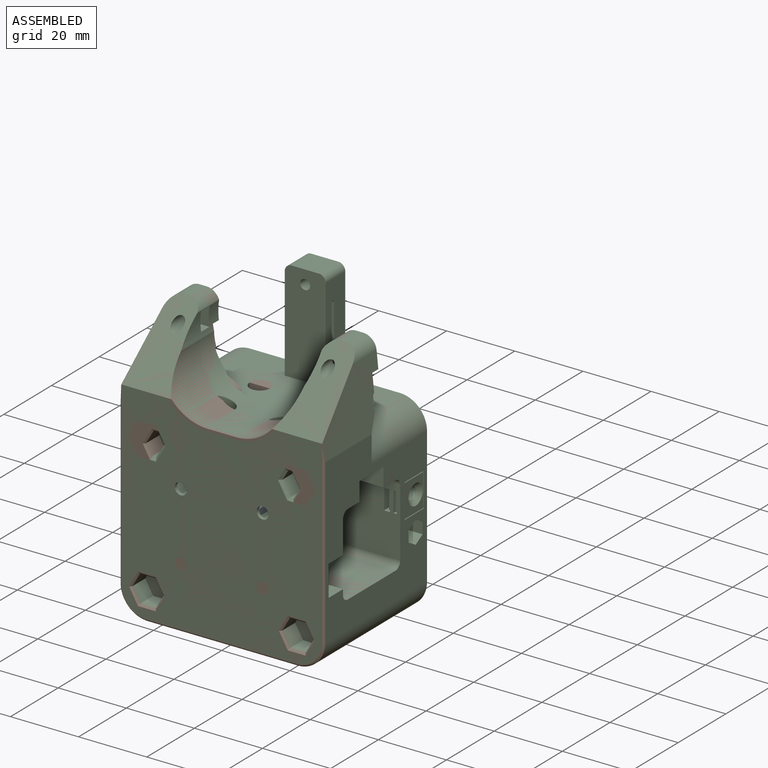
[diagram: assembled view]
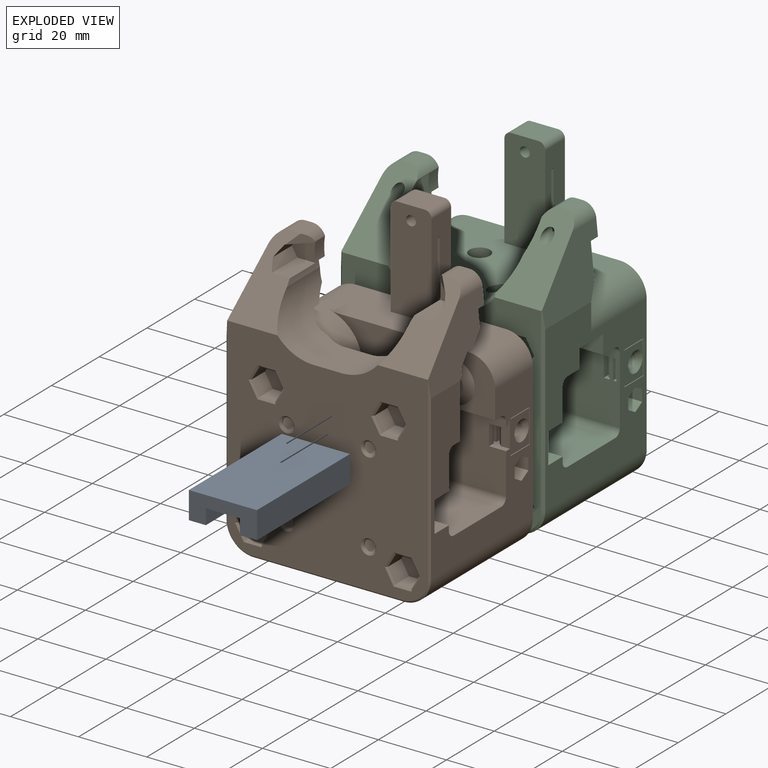
[diagram: exploded view]
GUIDED TOUR — FREECAD ASSEMBLY "x-carriage"

This assembly has 3 components, labeled P0..P2 below (a component is one placed body or linked part; the same part can appear more than once), held together by 0 modeled joints plus 3 derived contact edges. A joint is a constraint between two components; its type names the relative motion it leaves free:
  CONTACT — a derived adjacency edge — the two components touch in the source model (clearance under 2% of the assembly's diagonal); it is measured from the geometry, not a modeled constraint.
Axis/direction vectors are unit vectors and 'through' points are millimeter coordinates, both in the assembly's world frame.

MATES
  1. CONTACT "contact_0_1": P0 <-> P1, contact direction (0.000, 1.000, 0.000) through (-10.04, -19.58, 10.00) mm (derived from contact, not a modeled constraint)
  2. CONTACT "contact_0_2": P0 <-> P2, contact direction (0.000, 1.000, 0.000) through (-10.12, -19.75, 10.00) mm (derived from contact, not a modeled constraint)
  3. CONTACT "contact_1_2": P1 <-> P2, contact direction (0.000, 0.217, 0.976) through (20.75, 0.00, -22.45) mm (derived from contact, not a modeled constraint)

ASSEMBLY ORDER
  1. P0 — the base component [order heuristic]
  2. P1 [order heuristic]
  3. P2 [order heuristic]
Order-tag legend:
  [order heuristic] — this assembly is geometrically interlocked (no collision-free removal order exists), so components are listed in mate-graph order; insertion feasibility is not verified.

Of the 3 components, 3 carry a construction recipe — the FreeCAD feature program (sketches with constraints, then the solid features that consume them) that regenerates the part from scratch, quoted from this document or from the linked companion document it references; the rest are supplied as boundary geometry only. The tour below walks the components in assembly order: each is shown spotlighted twice — in the assembled view, then in the exploded view, where a leader line traces a displaced component back to its assembled socket (components that stay in place when exploded have no leader line; saturated green if recipe-attached, orange if geometry-only; every other component desaturated gray) — followed by its recipe or geometry summary and the mates that hold it.
NOTE — document 2 of 2 of this assembly tour. The two overview renders and the header above are repeated from document 1; the component sections below continue where the previous document stopped.
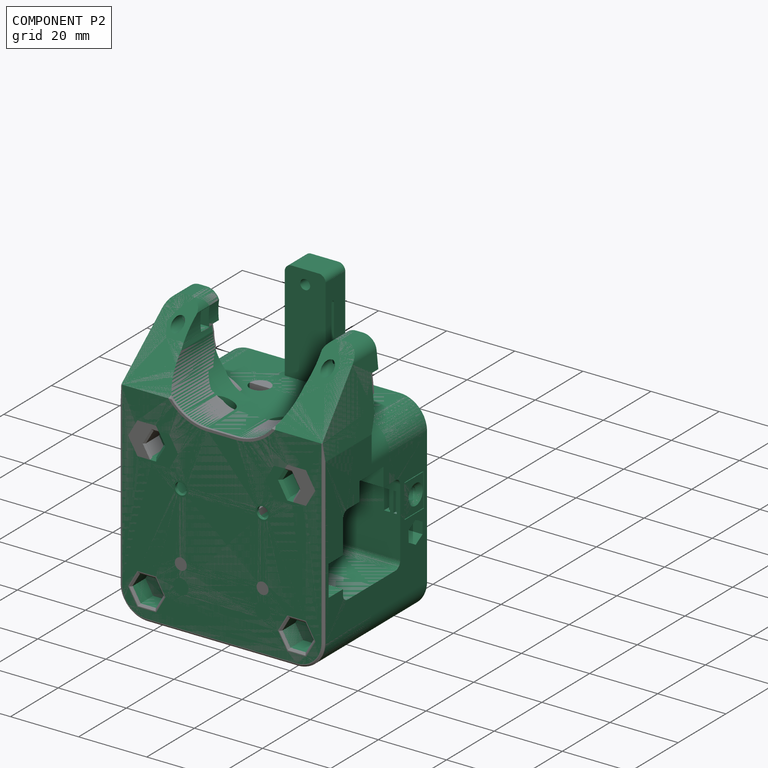
[diagram: component P2 — assembled]
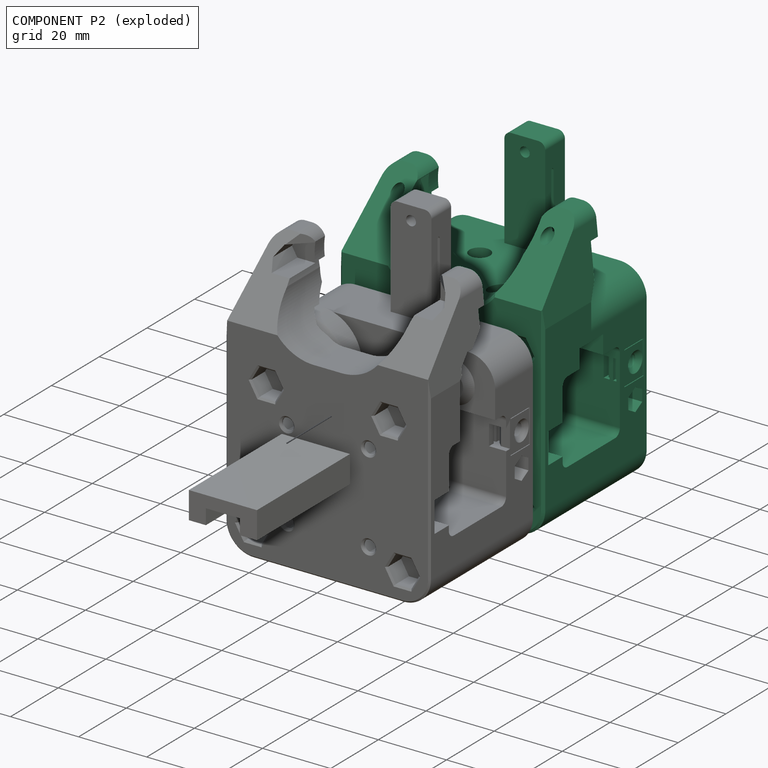
[diagram: component P2 — exploded]
COMPONENT P2 — recipe-attached ("main-rail", modeled in this document).
Held by: resting contact with P0 (derived edge); resting contact with P1 (derived edge).
Construction recipe (the document's own serialized feature program — sketch geometry with constraints, then the solid features built on it; lengths are millimeters unless a unit is written):

FEATURE [PartDesign::FeatureBase] Clone
  BaseFeature = -> Body154
  Suppressed = false
FEATURE [PartDesign::Body] Body161  label="mgn9h-carriage-x"
  AllowCompound = false
  Group = -> [Clone]
  Origin = -> Origin307
  Placement = pos=(0,0,11) rot=(0,0,1;1.5708rad)
  Tip = -> Clone
FEATURE [Sketcher::SketchObject] Sketch469
  ArcFitTolerance = 1e-06
  AttachmentSupport = -> [XZ_Plane307]
  FullyConstrained = true
  MakeInternals = false
  MapMode = 5
  Placement = pos=(0,0,0) rot=(1,0,0;1.5708rad)
  sketch-geometry (10):
    g0: LineSegment StartX=-30 StartY=28 StartZ=0 EndX=-30 EndY=-20 EndZ=0
    g1: LineSegment StartX=-22 StartY=-28 StartZ=0 EndX=22 EndY=-28 EndZ=0
    g2: LineSegment StartX=30 StartY=-20 StartZ=0 EndX=30 EndY=28 EndZ=0
    g3: LineSegment StartX=30 StartY=28 StartZ=0 EndX=-30 EndY=28 EndZ=0
    g4: GeomPoint [constr] X=-30 Y=28 Z=0
    g5: GeomPoint [constr] X=30 Y=28 Z=0
    g6: ArcOfCircle CenterX=22 CenterY=-20 CenterZ=0 NormalX=0 NormalY=0 NormalZ=1 AngleXU=0 Radius=8 StartAngle=4.71239 EndAngle=6.28319
    g7: GeomPoint [constr] X=30 Y=-28 Z=0
    g8: ArcOfCircle CenterX=-22 CenterY=-20 CenterZ=0 NormalX=0 NormalY=0 NormalZ=1 AngleXU=0 Radius=8 StartAngle=3.14159 EndAngle=4.71239
    g9: GeomPoint [constr] X=-30 Y=-28 Z=0
  constraints (23):
    c: Vertical(g0)
    c: Vertical(g2)
    c: Horizontal(g1)
    c: Horizontal(g3)
    c: DistanceX(g9,g7) = 60
    c: Symmetric(g7,g4,g-1)
    c: DistanceY(g7,g5) = 56
    c: PointOnObject(g4,g0)
    c: PointOnObject(g4,g3)
    c: PointOnObject(g5,g2)
    c: PointOnObject(g5,g3)
    c: PointOnObject(g7,g1)
    c: PointOnObject(g7,g2)
    c: Tangent(g1,g6) = -1.5708
    c: Tangent(g2,g6) = -1.5708
    c: PointOnObject(g9,g0)
    c: PointOnObject(g9,g1)
    c: Tangent(g0,g8) = -1.5708
    c: Tangent(g1,g8) = -1.5708
    c: Radius(g6) = 8
    c: Coincident(g2,g3)
    c: Coincident(g3,g0)
    c: Equal(g8,g6)
FEATURE [PartDesign::Pad] Pad103
  Direction = (0,-1,2e-16)
  Length = 20
  Length2 = 10
  Placement = pos=(0,0,0) rot=(1,0,0;1.5708rad)
  Profile = -> Sketch469
  ReferenceAxis = -> Sketch469 [N_Axis]
  Suppressed = false
  Type = 0
FEATURE [Sketcher::SketchObject] Sketch470
  ArcFitTolerance = 1e-06
  AttachmentSupport = -> [YZ_Plane307]
  FullyConstrained = true
  MakeInternals = false
  MapMode = 5
  Placement = pos=(0,0,0) rot=(0.57735,0.57735,0.57735;2.0944rad)
  sketch-geometry (12):
    g0: LineSegment StartX=-12 StartY=10 StartZ=0 EndX=-12 EndY=-10 EndZ=0
    g1: LineSegment StartX=-10 StartY=-12 StartZ=0 EndX=10 EndY=-12 EndZ=0
    g2: LineSegment StartX=12 StartY=-10 StartZ=0 EndX=12 EndY=10 EndZ=0
    g3: LineSegment StartX=10 StartY=12 StartZ=0 EndX=-10 EndY=12 EndZ=0
    g4: ArcOfCircle CenterX=-10 CenterY=10 CenterZ=0 NormalX=0 NormalY=0 NormalZ=1 AngleXU=0 Radius=2 StartAngle=1.5708 EndAngle=3.14159
    g5: GeomPoint [constr] X=-12 Y=12 Z=0
    g6: ArcOfCircle CenterX=10 CenterY=10 CenterZ=0 NormalX=0 NormalY=0 NormalZ=1 AngleXU=0 Radius=2 StartAngle=4.6e-15 EndAngle=1.5708
    g7: GeomPoint [constr] X=12 Y=12 Z=0
    g8: ArcOfCircle CenterX=10 CenterY=-10 CenterZ=0 NormalX=0 NormalY=0 NormalZ=1 AngleXU=0 Radius=2 StartAngle=4.71239 EndAngle=6.28319
    g9: GeomPoint [constr] X=12 Y=-12 Z=0
    g10: ArcOfCircle CenterX=-10 CenterY=-10 CenterZ=0 NormalX=0 NormalY=0 NormalZ=1 AngleXU=0 Radius=2 StartAngle=3.14159 EndAngle=4.71239
    g11: GeomPoint [constr] X=-12 Y=-12 Z=0
  constraints (27):
    c: Vertical(g0)
    c: Vertical(g2)
    c: Horizontal(g1)
    c: Horizontal(g3)
    c: Symmetric(g9,g5,g-1)
    c: PointOnObject(g5,g0)
    c: PointOnObject(g5,g3)
    c: Tangent(g0,g4) = -1.5708
    c: Tangent(g3,g4) = -1.5708
    c: PointOnObject(g7,g2)
    c: PointOnObject(g7,g3)
    c: Tangent(g2,g6) = -1.5708
    c: Tangent(g3,g6) = -1.5708
    c: PointOnObject(g9,g1)
    c: PointOnObject(g9,g2)
    c: Tangent(g1,g8) = -1.5708
    c: Tangent(g2,g8) = -1.5708
    c: PointOnObject(g11,g0)
    c: PointOnObject(g11,g1)
    c: Tangent(g0,g10) = -1.5708
    c: Tangent(g1,g10) = -1.5708
    c: Equal(g10,g4)
    c: Equal(g4,g6)
    c: Equal(g6,g8)
    c: Equal(g1,g2)
    c: DistanceX(g1,g1) = 20
    c: Radius(g10) = 2
FEATURE [PartDesign::Pocket] Pocket293
  BaseFeature = -> Pad103
  Direction = (-1,0,0)
  Length = 5
  Length2 = 5
  Midplane = true
  Placement = pos=(0,0,0) rot=(1,0,0;1.5708rad)
  Profile = -> Sketch470
  ReferenceAxis = -> Sketch470 [N_Axis]
  Suppressed = false
  Type = 1
FEATURE [Sketcher::SketchObject] Sketch474
  ArcFitTolerance = 1e-06
  AttachmentOffset = pos=(0,0,14) rot=(0,0,1;0rad)
  AttachmentSupport = -> [XZ_Plane307]
  FullyConstrained = true
  MakeInternals = false
  MapMode = 5
  Placement = pos=(0,-14,3.1e-15) rot=(1,0,0;1.5708rad)
  sketch-geometry (28):
    g0: LineSegment StartX=-19.6906 StartY=16 StartZ=0 EndX=-17.3812 EndY=20 EndZ=0
    g1: LineSegment StartX=-17.3812 StartY=20 StartZ=0 EndX=-19.6906 EndY=24 EndZ=0
    g2: LineSegment StartX=-19.6906 StartY=24 StartZ=0 EndX=-24.3094 EndY=24 EndZ=0
    g3: LineSegment StartX=-24.3094 StartY=24 StartZ=0 EndX=-26.6188 EndY=20 EndZ=0
    g4: LineSegment StartX=-26.6188 StartY=20 StartZ=0 EndX=-24.3094 EndY=16 EndZ=0
    g5: LineSegment StartX=-24.3094 StartY=16 StartZ=0 EndX=-19.6906 EndY=16 EndZ=0
    g6: Circle [constr] CenterX=-22 CenterY=20 CenterZ=0 NormalX=0 NormalY=0 NormalZ=1 AngleXU=0 Radius=4.6188
    g7: LineSegment StartX=26.6188 StartY=20 StartZ=0 EndX=24.3094 EndY=24 EndZ=0
    g8: LineSegment StartX=24.3094 StartY=24 StartZ=0 EndX=19.6906 EndY=24 EndZ=0
    g9: LineSegment StartX=19.6906 StartY=24 StartZ=0 EndX=17.3812 EndY=20 EndZ=0
    g10: LineSegment StartX=17.3812 StartY=20 StartZ=0 EndX=19.6906 EndY=16 EndZ=0
    g11: LineSegment StartX=19.6906 StartY=16 StartZ=0 EndX=24.3094 EndY=16 EndZ=0
    g12: LineSegment StartX=24.3094 StartY=16 StartZ=0 EndX=26.6188 EndY=20 EndZ=0
    g13: Circle [constr] CenterX=22 CenterY=20 CenterZ=0 NormalX=0 NormalY=0 NormalZ=1 AngleXU=0 Radius=4.6188
    g14: LineSegment StartX=24.3094 StartY=-24 StartZ=0 EndX=26.6188 EndY=-20 EndZ=0
    g15: LineSegment StartX=26.6188 StartY=-20 StartZ=0 EndX=24.3094 EndY=-16 EndZ=0
    g16: LineSegment StartX=24.3094 StartY=-16 StartZ=0 EndX=19.6906 EndY=-16 EndZ=0
    g17: LineSegment StartX=19.6906 StartY=-16 StartZ=0 EndX=17.3812 EndY=-20 EndZ=0
    g18: LineSegment StartX=17.3812 StartY=-20 StartZ=0 EndX=19.6906 EndY=-24 EndZ=0
    g19: LineSegment StartX=19.6906 StartY=-24 StartZ=0 EndX=24.3094 EndY=-24 EndZ=0
    g20: Circle [constr] CenterX=22 CenterY=-20 CenterZ=0 NormalX=0 NormalY=0 NormalZ=1 AngleXU=0 Radius=4.6188
    g21: LineSegment StartX=-24.3094 StartY=-24 StartZ=0 EndX=-19.6906 EndY=-24 EndZ=0
    g22: LineSegment StartX=-19.6906 StartY=-24 StartZ=0 EndX=-17.3812 EndY=-20 EndZ=0
    g23: LineSegment StartX=-17.3812 StartY=-20 StartZ=0 EndX=-19.6906 EndY=-16 EndZ=0
    g24: LineSegment StartX=-19.6906 StartY=-16 StartZ=0 EndX=-24.3094 EndY=-16 EndZ=0
    g25: LineSegment StartX=-24.3094 StartY=-16 StartZ=0 EndX=-26.6188 EndY=-20 EndZ=0
    g26: LineSegment StartX=-26.6188 StartY=-20 StartZ=0 EndX=-24.3094 EndY=-24 EndZ=0
    g27: Circle [constr] CenterX=-22 CenterY=-20 CenterZ=0 NormalX=0 NormalY=0 NormalZ=1 AngleXU=0 Radius=4.6188
  constraints (65):
    c: Coincident(g0,g1)
    c: Coincident(g1,g2)
    c: Coincident(g2,g3)
    c: Coincident(g3,g4)
    c: Coincident(g4,g5)
    c: Coincident(g5,g0)
    c: Equal(g0, g1-g5) x5
    c: PointOnObject(g0,g6)
    c: PointOnObject(g1,g6)
    c: PointOnObject(g2,g6)
    c: PointOnObject(g3,g6)
    c: PointOnObject(g4,g6)
    c: PointOnObject(g5,g6)
    c: Coincident(g7,g8)
    c: Coincident(g8,g9)
    c: Coincident(g9,g10)
    c: Coincident(g10,g11)
    c: Coincident(g11,g12)
    c: Coincident(g12,g7)
    c: Equal(g7, g8-g12) x5
    c: PointOnObject(g7,g13)
    c: PointOnObject(g8,g13)
    c: PointOnObject(g9,g13)
    c: PointOnObject(g10,g13)
    c: PointOnObject(g11,g13)
    c: PointOnObject(g12,g13)
    c: Coincident(g14,g15)
    c: Coincident(g15,g16)
    c: Coincident(g16,g17)
    c: Coincident(g17,g18)
    c: Coincident(g18,g19)
    c: Coincident(g19,g14)
    c: Equal(g14, g15-g19) x5
    c: PointOnObject(g14,g20)
    c: PointOnObject(g15,g20)
    c: PointOnObject(g16,g20)
    c: PointOnObject(g17,g20)
    c: PointOnObject(g18,g20)
    c: PointOnObject(g19,g20)
    c: Coincident(g21,g22)
    c: Coincident(g22,g23)
    c: Coincident(g23,g24)
    c: Coincident(g24,g25)
    c: Coincident(g25,g26)
    c: Coincident(g26,g21)
    c: Equal(g21, g22-g26) x5
    c: PointOnObject(g21,g27)
    c: PointOnObject(g22,g27)
    c: PointOnObject(g23,g27)
    c: PointOnObject(g24,g27)
    c: PointOnObject(g25,g27)
    c: PointOnObject(g26,g27)
    c: Symmetric(g20,g27,g-2)
    c: Symmetric(g13,g6,g-2)
    c: Equal(g13,g6)
    c: Equal(g6,g27)
    c: Equal(g27,g20)
    c: Horizontal(g16)
    c: Horizontal(g24)
    c: Horizontal(g5)
    c: Horizontal(g11)
    c: DistanceY(g11,g7) = 8
    c: DistanceX(g27,g20) = 44
    c: DistanceY(g20) = -20
    c: Symmetric(g13,g20,g-1)
FEATURE [Sketcher::SketchObject] Sketch476
  ArcFitTolerance = 0
  AttachmentOffset = pos=(0,0,12) rot=(0,0,1;0rad)
  AttachmentSupport = -> [XZ_Plane307]
  FullyConstrained = true
  MakeInternals = false
  MapMode = 5
  Placement = pos=(0,-12,2.7e-15) rot=(1,0,0;1.5708rad)
  sketch-geometry (9):
    g0: LineSegment StartX=-14 StartY=11.5 StartZ=0 EndX=-14 EndY=-3.5 EndZ=0
    g1: LineSegment StartX=-30 StartY=-0.5 StartZ=0 EndX=-30 EndY=8.5 EndZ=0
    g2: GeomPoint [constr] X=0 Y=5 Z=0
    g3: LineSegment StartX=-14 StartY=11.5 StartZ=0 EndX=-22 EndY=11.5 EndZ=0
    g4: LineSegment StartX=-22 StartY=11.5 StartZ=0 EndX=-22 EndY=8.5 EndZ=0
    g5: LineSegment StartX=-22 StartY=8.5 StartZ=0 EndX=-30 EndY=8.5 EndZ=0
    g6: LineSegment StartX=-30 StartY=-0.5 StartZ=0 EndX=-22 EndY=-0.5 EndZ=0
    g7: LineSegment StartX=-22 StartY=-0.5 StartZ=0 EndX=-22 EndY=-3.5 EndZ=0
    g8: LineSegment StartX=-22 StartY=-3.5 StartZ=0 EndX=-14 EndY=-3.5 EndZ=0
  constraints (26):
    c: Vertical(g0)
    c: Vertical(g1)
    c: DistanceX(g1) = -30
    c: DistanceY(g2) = 5
    c: DistanceX(g0) = -14
    c: Coincident(g3,g0)
    c: Horizontal(g3)
    c: Coincident(g4,g3)
    c: Vertical(g4)
    c: Coincident(g5,g4)
    c: Coincident(g5,g1)
    c: Coincident(g6,g1)
    c: Horizontal(g6)
    c: Coincident(g7,g6)
    c: Vertical(g7)
    c: Coincident(g8,g7)
    c: Coincident(g8,g0)
    c: Horizontal(g8)
    c: Horizontal(g5)
    c: Vertical(g4,g6)
    c: DistanceY(g4,g4) = 3
    c: DistanceX(g3,g3) = 8
    c: PointOnObject(g2,g-2)
    c: DistanceY(g1,g2) = 5.5
    c: Equal(g7,g4)
    c: DistanceY(g2,g1) = 3.5
FEATURE [Sketcher::SketchObject] Sketch477
  ArcFitTolerance = 0
  AttachmentOffset = pos=(0,0,18) rot=(0,0,1;0rad)
  AttachmentSupport = -> [XZ_Plane307]
  FullyConstrained = true
  MakeInternals = false
  MapMode = 5
  Placement = pos=(0,-18,4e-15) rot=(1,0,0;1.5708rad)
  sketch-geometry (9):
    g0: LineSegment StartX=-30 StartY=8.5 StartZ=0 EndX=-24 EndY=8.5 EndZ=0
    g1: LineSegment StartX=-24 StartY=8.5 StartZ=0 EndX=-24 EndY=11.5 EndZ=0
    g2: LineSegment StartX=-24 StartY=11.5 StartZ=0 EndX=-16 EndY=11.5 EndZ=0
    g3: LineSegment StartX=-16 StartY=11.5 StartZ=0 EndX=-16 EndY=-3.5 EndZ=0
    g4: LineSegment StartX=-16 StartY=-3.5 StartZ=0 EndX=-24 EndY=-3.5 EndZ=0
    g5: LineSegment StartX=-24 StartY=-3.5 StartZ=0 EndX=-24 EndY=-0.5 EndZ=0
    g6: LineSegment StartX=-24 StartY=-0.5 StartZ=0 EndX=-30 EndY=-0.5 EndZ=0
    g7: LineSegment StartX=-30 StartY=-0.5 StartZ=0 EndX=-30 EndY=8.5 EndZ=0
    g8: GeomPoint [constr] X=0 Y=5 Z=0
  constraints (26):
    c: Horizontal(g0)
    c: Coincident(g1,g0)
    c: Vertical(g1)
    c: Coincident(g2,g1)
    c: Horizontal(g2)
    c: Coincident(g3,g2)
    c: Vertical(g3)
    c: Coincident(g4,g3)
    c: Horizontal(g4)
    c: Coincident(g5,g4)
    c: Coincident(g6,g5)
    c: Horizontal(g6)
    c: Coincident(g7,g6)
    c: Coincident(g7,g0)
    c: Vertical(g7)
    c: Vertical(g5)
    c: Vertical(g5,g0)
    c: Equal(g1,g5)
    c: DistanceY(g1,g1) = 3
    c: DistanceX(g6) = -30
    c: DistanceX(g2) = -16  '-16'
    c: DistanceX(g4,g4) = 8
    c: PointOnObject(g8,g-2)
    c: DistanceY(g8) = 5
    c: DistanceY(g5,g8) = 5.5
    c: DistanceY(g8,g0) = 3.5
FEATURE [Sketcher::SketchObject] Sketch478
  ArcFitTolerance = 1e-06
  AttachmentOffset = pos=(0,0,16) rot=(0,0,1;0rad)
  AttachmentSupport = -> [XZ_Plane307]
  FullyConstrained = true
  MakeInternals = false
  MapMode = 5
  Placement = pos=(0,-16,3.6e-15) rot=(1,0,0;1.5708rad)
  sketch-geometry (4):
    g0: Circle CenterX=-12 CenterY=10 CenterZ=0 NormalX=0 NormalY=0 NormalZ=1 AngleXU=0 Radius=1.75
    g1: Circle CenterX=12 CenterY=10 CenterZ=0 NormalX=0 NormalY=0 NormalZ=1 AngleXU=0 Radius=1.75
    g2: Circle CenterX=12 CenterY=-10 CenterZ=0 NormalX=0 NormalY=0 NormalZ=1 AngleXU=0 Radius=1.75
    g3: Circle CenterX=-12 CenterY=-10 CenterZ=0 NormalX=0 NormalY=0 NormalZ=1 AngleXU=0 Radius=1.75
  constraints (11):
    c: Equal(g3,g2)
    c: Equal(g2,g1)
    c: Equal(g1,g0)
    c: Diameter(g0) = 3.5
    c: Vertical(g2,g1)
    c: Vertical(g3,g0)
    c: Horizontal(g0,g1)
    c: Horizontal(g2,g3)
    c: Symmetric(g1,g3,g-1)
    c: DistanceX(g0,g1) = 24
    c: DistanceY(g2,g1) = 20
FEATURE [Sketcher::SketchObject] Sketch479
  ArcFitTolerance = 1e-06
  AttachmentOffset = pos=(0,0,19) rot=(0,0,1;0rad)
  AttachmentSupport = -> [XZ_Plane307]
  FullyConstrained = true
  MakeInternals = false
  MapMode = 5
  Placement = pos=(0,-19,4.2e-15) rot=(1,0,0;1.5708rad)
  sketch-geometry (28):
    g0: LineSegment StartX=-10.4123 StartY=7.25 StartZ=0 EndX=-8.82457 EndY=10 EndZ=0
    g1: LineSegment StartX=-8.82457 StartY=10 StartZ=0 EndX=-10.4123 EndY=12.75 EndZ=0
    g2: LineSegment StartX=-10.4123 StartY=12.75 StartZ=0 EndX=-13.5877 EndY=12.75 EndZ=0
    g3: LineSegment StartX=-13.5877 StartY=12.75 StartZ=0 EndX=-15.1754 EndY=10 EndZ=0
    g4: LineSegment StartX=-15.1754 StartY=10 StartZ=0 EndX=-13.5877 EndY=7.25 EndZ=0
    g5: LineSegment StartX=-13.5877 StartY=7.25 StartZ=0 EndX=-10.4123 EndY=7.25 EndZ=0
    g6: Circle [constr] CenterX=-12 CenterY=10 CenterZ=0 NormalX=0 NormalY=0 NormalZ=1 AngleXU=0 Radius=3.17543
    g7: LineSegment StartX=10.4123 StartY=7.25 StartZ=0 EndX=13.5877 EndY=7.25 EndZ=0
    g8: LineSegment StartX=13.5877 StartY=7.25 StartZ=0 EndX=15.1754 EndY=10 EndZ=0
    g9: LineSegment StartX=15.1754 StartY=10 StartZ=0 EndX=13.5877 EndY=12.75 EndZ=0
    g10: LineSegment StartX=13.5877 StartY=12.75 StartZ=0 EndX=10.4123 EndY=12.75 EndZ=0
    g11: LineSegment StartX=10.4123 StartY=12.75 StartZ=0 EndX=8.82457 EndY=10 EndZ=0
    g12: LineSegment StartX=8.82457 StartY=10 StartZ=0 EndX=10.4123 EndY=7.25 EndZ=0
    g13: Circle [constr] CenterX=12 CenterY=10 CenterZ=0 NormalX=0 NormalY=0 NormalZ=1 AngleXU=0 Radius=3.17543
    g14: LineSegment StartX=13.5877 StartY=-12.75 StartZ=0 EndX=15.1754 EndY=-10 EndZ=0
    g15: LineSegment StartX=15.1754 StartY=-10 StartZ=0 EndX=13.5877 EndY=-7.25 EndZ=0
    g16: LineSegment StartX=13.5877 StartY=-7.25 StartZ=0 EndX=10.4123 EndY=-7.25 EndZ=0
    g17: LineSegment StartX=10.4123 StartY=-7.25 StartZ=0 EndX=8.82457 EndY=-10 EndZ=0
    g18: LineSegment StartX=8.82457 StartY=-10 StartZ=0 EndX=10.4123 EndY=-12.75 EndZ=0
    g19: LineSegment StartX=10.4123 StartY=-12.75 StartZ=0 EndX=13.5877 EndY=-12.75 EndZ=0
    g20: Circle [constr] CenterX=12 CenterY=-10 CenterZ=0 NormalX=0 NormalY=0 NormalZ=1 AngleXU=0 Radius=3.17543
    g21: LineSegment StartX=-10.4123 StartY=-12.75 StartZ=0 EndX=-8.82457 EndY=-10 EndZ=0
    g22: LineSegment StartX=-8.82457 StartY=-10 StartZ=0 EndX=-10.4123 EndY=-7.25 EndZ=0
    g23: LineSegment StartX=-10.4123 StartY=-7.25 StartZ=0 EndX=-13.5877 EndY=-7.25 EndZ=0
    g24: LineSegment StartX=-13.5877 StartY=-7.25 StartZ=0 EndX=-15.1754 EndY=-10 EndZ=0
    g25: LineSegment StartX=-15.1754 StartY=-10 StartZ=0 EndX=-13.5877 EndY=-12.75 EndZ=0
    g26: LineSegment StartX=-13.5877 StartY=-12.75 StartZ=0 EndX=-10.4123 EndY=-12.75 EndZ=0
    g27: Circle [constr] CenterX=-12 CenterY=-10 CenterZ=0 NormalX=0 NormalY=0 NormalZ=1 AngleXU=0 Radius=3.17543
  constraints (67):
    c: Coincident(g0,g1)
    c: Coincident(g1,g2)
    c: Coincident(g2,g3)
    c: Coincident(g3,g4)
    c: Coincident(g4,g5)
    c: Coincident(g5,g0)
    c: Equal(g0, g1-g5) x5
    c: PointOnObject(g0,g6)
    c: PointOnObject(g1,g6)
    c: PointOnObject(g2,g6)
    c: PointOnObject(g3,g6)
    c: PointOnObject(g4,g6)
    c: PointOnObject(g5,g6)
    c: Coincident(g7,g8)
    c: Coincident(g8,g9)
    c: Coincident(g9,g10)
    c: Coincident(g10,g11)
    c: Coincident(g11,g12)
    c: Coincident(g12,g7)
    c: Equal(g7, g8-g12) x5
    c: PointOnObject(g7,g13)
    c: PointOnObject(g8,g13)
    c: PointOnObject(g9,g13)
    c: PointOnObject(g10,g13)
    c: PointOnObject(g11,g13)
    c: PointOnObject(g12,g13)
    c: Coincident(g14,g15)
    c: Coincident(g15,g16)
    c: Coincident(g16,g17)
    c: Coincident(g17,g18)
    c: Coincident(g18,g19)
    c: Coincident(g19,g14)
    c: Equal(g14, g15-g19) x5
    c: PointOnObject(g14,g20)
    c: PointOnObject(g15,g20)
    c: PointOnObject(g16,g20)
    c: PointOnObject(g17,g20)
    c: PointOnObject(g18,g20)
    c: PointOnObject(g19,g20)
    c: Coincident(g21,g22)
    c: Coincident(g22,g23)
    c: Coincident(g23,g24)
    c: Coincident(g24,g25)
    c: Coincident(g25,g26)
    c: Coincident(g26,g21)
    c: Equal(g21, g22-g26) x5
    c: PointOnObject(g21,g27)
    c: PointOnObject(g22,g27)
    c: PointOnObject(g23,g27)
    c: PointOnObject(g24,g27)
    c: PointOnObject(g25,g27)
    c: PointOnObject(g26,g27)
    c: Horizontal(g2)
    c: Horizontal(g10)
    c: Horizontal(g16)
    c: Horizontal(g23)
    c: Equal(g13,g20)
    c: Equal(g20,g27)
    c: Equal(g27,g6)
    c: DistanceY(g21,g22) = 5.5
    c: Horizontal(g27,g20)
    c: Vertical(g20,g13)
    c: Vertical(g6,g27)
    c: Horizontal(g6,g13)
    c: Symmetric(g13,g27,g-1)
    c: DistanceX(g6,g13) = 24
    c: DistanceY(g27,g6) = 20
FEATURE [Sketcher::SketchObject] Sketch480
  ArcFitTolerance = 1e-06
  AttachmentSupport = -> [XZ_Plane307]
  FullyConstrained = true
  MakeInternals = false
  MapMode = 5
  Placement = pos=(0,0,0) rot=(1,0,0;1.5708rad)
  sketch-geometry (7):
    g0: LineSegment StartX=27.9795 StartY=47.904 StartZ=0 EndX=30 EndY=28 EndZ=0
    g1: ArcOfCircle CenterX=22 CenterY=47.5 CenterZ=0 NormalX=0 NormalY=0 NormalZ=1 AngleXU=0 Radius=4 StartAngle=1.5708 EndAngle=3.14159
    g2: LineSegment StartX=30 StartY=28 StartZ=0 EndX=4 EndY=28 EndZ=0
    g3: ArcOfCircle CenterX=4 CenterY=42 CenterZ=0 NormalX=0 NormalY=0 NormalZ=1 AngleXU=0 Radius=14 StartAngle=4.71239 EndAngle=6.28319
    g4: LineSegment StartX=18 StartY=42 StartZ=0 EndX=18 EndY=47.5 EndZ=0
    g5: LineSegment StartX=22 StartY=51.5 StartZ=0 EndX=24 EndY=51.5 EndZ=0
    g6: ArcOfCircle CenterX=24 CenterY=47.5 CenterZ=0 NormalX=0 NormalY=0 NormalZ=1 AngleXU=0 Radius=4 StartAngle=0.101163 EndAngle=1.5708
  constraints (18):
    c: Horizontal(g2)
    c: DistanceX(g0) = 30
    c: DistanceY(g2) = 28
    c: DistanceY(g1) = 47.5
    c: DistanceX(g1) = 22
    c: Radius(g1) = 4
    c: Coincident(g2,g0)
    c: Vertical(g4)
    c: Tangent(g4,g1) = 1.5708
    c: Tangent(g4,g3) = -1.5708
    c: Tangent(g2,g3) = 1.5708
    c: Radius(g3) = 14
    c: Horizontal(g5)
    c: Tangent(g5,g1) = 1.5708
    c: Tangent(g6,g0) = 1.5708
    c: Tangent(g6,g5) = 1.5708
    c: Equal(g6,g1)
    c: DistanceX(g5,g5) = 2
FEATURE [Sketcher::SketchObject] Sketch481
  ArcFitTolerance = 1e-06
  AttachmentSupport = -> [YZ_Plane307]
  FullyConstrained = true
  MakeInternals = false
  MapMode = 5
  Placement = pos=(0,0,0) rot=(0.57735,0.57735,0.57735;2.0944rad)
  sketch-geometry (6):
    g0: LineSegment StartX=-20 StartY=33 StartZ=0 EndX=-1.5 EndY=51.5 EndZ=0
    g1: LineSegment StartX=-1.5 StartY=51.5 StartZ=0 EndX=-20 EndY=51.5 EndZ=0
    g2: LineSegment StartX=-20 StartY=51.5 StartZ=0 EndX=-20 EndY=33 EndZ=0
    g3: LineSegment StartX=0 StartY=28 StartZ=0 EndX=5 EndY=40 EndZ=0
    g4: LineSegment StartX=5 StartY=40 StartZ=0 EndX=5 EndY=28 EndZ=0
    g5: LineSegment StartX=5 StartY=28 StartZ=0 EndX=0 EndY=28 EndZ=0
  constraints (18):
    c: Coincident(g0,g1)
    c: Horizontal(g1)
    c: Coincident(g1,g2)
    c: Coincident(g2,g0)
    c: Vertical(g2)
    c: Coincident(g3,g4)
    c: Vertical(g4)
    c: Coincident(g4,g5)
    c: Coincident(g5,g3)
    c: Horizontal(g5)
    c: DistanceX(g0) = -20
    c: DistanceY(g1) = 51.5
    c: DistanceY(g0) = 33
    c: DistanceX(g4) = 5
    c: Angle(g0) = 0.785398
    c: DistanceY(g3) = 28
    c: DistanceY(g3) = 40
    c: PointOnObject(g3,g-2)
FEATURE [Sketcher::SketchObject] Sketch482
  ArcFitTolerance = 1e-06
  AttachmentSupport = -> [XZ_Plane307]
  FullyConstrained = true
  MakeInternals = false
  MapMode = 5
  Placement = pos=(0,0,0) rot=(1,0,0;1.5708rad)
  sketch-geometry (2):
    g0: ArcOfCircle CenterX=0 CenterY=46 CenterZ=0 NormalX=0 NormalY=0 NormalZ=1 AngleXU=0 Radius=18.5 StartAngle=5.2383 EndAngle=10.4697
    g1: LineSegment StartX=-9.28709 StartY=30 StartZ=0 EndX=9.28709 EndY=30 EndZ=0
  constraints (7):
    c: PointOnObject(g0,g-2)
    c: DistanceY(g0) = 46
    c: Diameter(g0) = 37
    c: Horizontal(g1)
    c: DistanceY(g1) = 30
    c: Coincident(g0,g1)
    c: Coincident(g0,g1)
FEATURE [Sketcher::SketchObject] Sketch483
  ArcFitTolerance = 1e-06
  AttachmentOffset = pos=(0,0,-5) rot=(0,0,1;0rad)
  AttachmentSupport = -> [XZ_Plane307]
  FullyConstrained = false
  MakeInternals = false
  MapMode = 5
  Placement = pos=(0,5,-1.1e-15) rot=(1,0,0;1.5708rad)
  sketch-geometry (8):
    g0: LineSegment StartX=12.1778 StartY=43 StartZ=0 EndX=12.1778 EndY=0 EndZ=0
    g1: LineSegment StartX=12.1778 StartY=0 StartZ=0 EndX=34.1758 EndY=0 EndZ=0
    g2: LineSegment StartX=34.1758 StartY=0 StartZ=0 EndX=34.1758 EndY=43 EndZ=0
    g3: LineSegment StartX=34.1758 StartY=43 StartZ=0 EndX=12.1778 EndY=43 EndZ=0
    g4: LineSegment StartX=-34.5059 StartY=43.5 StartZ=0 EndX=-34.5059 EndY=0 EndZ=0
    g5: LineSegment StartX=-34.5059 StartY=0 StartZ=0 EndX=-10.5632 EndY=0 EndZ=0
    g6: LineSegment StartX=-10.5632 StartY=0 StartZ=0 EndX=-10.5632 EndY=43.5 EndZ=0
    g7: LineSegment StartX=-10.5632 StartY=43.5 StartZ=0 EndX=-34.5059 EndY=43.5 EndZ=0
  constraints (20):
    c: Coincident(g0,g1)
    c: Coincident(g1,g2)
    c: Coincident(g2,g3)
    c: Coincident(g3,g0)
    c: Vertical(g0)
    c: Vertical(g2)
    c: Horizontal(g1)
    c: Horizontal(g3)
    c: DistanceY(g2) = 43
    c: Coincident(g4,g5)
    c: Coincident(g5,g6)
    c: Coincident(g6,g7)
    c: Coincident(g7,g4)
    c: Vertical(g4)
    c: Vertical(g6)
    c: Horizontal(g5)
    c: Horizontal(g7)
    c: DistanceY(g6) = 43.5
    c: PointOnObject(g5,g-1)
    c: PointOnObject(g0,g-1)
FEATURE [Sketcher::SketchObject] Sketch484
  ArcFitTolerance = 1e-06
  AttachmentOffset = pos=(0,0,-1) rot=(0,0,1;0rad)
  AttachmentSupport = -> [XZ_Plane307]
  FullyConstrained = true
  MakeInternals = false
  MapMode = 5
  Placement = pos=(0,1,-2e-16) rot=(1,0,0;1.5708rad)
  sketch-geometry (10):
    g0: LineSegment StartX=23.5877 StartY=43.25 StartZ=0 EndX=25.1754 EndY=46 EndZ=0
    g1: LineSegment StartX=25.1754 StartY=46 StartZ=0 EndX=23.5877 EndY=48.75 EndZ=0
    g2: LineSegment StartX=23.5877 StartY=48.75 StartZ=0 EndX=20.4123 EndY=48.75 EndZ=0
    g3: LineSegment [constr] StartX=20.4123 StartY=48.75 StartZ=0 EndX=18.8246 EndY=46 EndZ=0
    g4: LineSegment [constr] StartX=18.8246 StartY=46 StartZ=0 EndX=20.4123 EndY=43.25 EndZ=0
    g5: LineSegment StartX=20.4123 StartY=43.25 StartZ=0 EndX=23.5877 EndY=43.25 EndZ=0
    g6: Circle [constr] CenterX=22 CenterY=46 CenterZ=0 NormalX=0 NormalY=0 NormalZ=1 AngleXU=0 Radius=3.17543
    g7: LineSegment StartX=20.4123 StartY=48.75 StartZ=0 EndX=16.4123 EndY=48.75 EndZ=0
    g8: LineSegment StartX=16.4123 StartY=48.75 StartZ=0 EndX=16.4123 EndY=43.25 EndZ=0
    g9: LineSegment StartX=16.4123 StartY=43.25 StartZ=0 EndX=20.4123 EndY=43.25 EndZ=0
  constraints (25):
    c: Coincident(g0,g1)
    c: Coincident(g1,g2)
    c: Coincident(g2,g3)
    c: Coincident(g3,g4)
    c: Coincident(g4,g5)
    c: Coincident(g5,g0)
    c: Equal(g0, g1-g5) x5
    c: PointOnObject(g0,g6)
    c: PointOnObject(g1,g6)
    c: PointOnObject(g2,g6)
    c: PointOnObject(g3,g6)
    c: PointOnObject(g4,g6)
    c: PointOnObject(g5,g6)
    c: DistanceX(g6) = 22
    c: DistanceY(g6) = 46
    c: Horizontal(g5)
    c: DistanceY(g0,g1) = 5.5
    c: Coincident(g2,g7)
    c: Horizontal(g7)
    c: Coincident(g7,g8)
    c: Vertical(g8)
    c: Coincident(g8,g9)
    c: Coincident(g9,g4)
    c: Horizontal(g9)
    c: DistanceX(g9,g9) = 4
FEATURE [Sketcher::SketchObject] Sketch486
  ArcFitTolerance = 1e-06
  AttachmentOffset = pos=(0,0,-1.3) rot=(0,0,1;0rad)
  AttachmentSupport = -> [XZ_Plane307]
  FullyConstrained = true
  MakeInternals = false
  MapMode = 5
  Placement = pos=(0,1.3,-3e-16) rot=(1,0,0;1.5708rad)
  sketch-geometry (2):
    g0: Circle CenterX=22 CenterY=46 CenterZ=0 NormalX=0 NormalY=0 NormalZ=1 AngleXU=0 Radius=1.75
    g1: Circle CenterX=-22 CenterY=46 CenterZ=0 NormalX=0 NormalY=0 NormalZ=1 AngleXU=0 Radius=1.75
  constraints (5):
    c: Symmetric(g1,g0,g-2)
    c: Equal(g0,g1)
    c: Diameter(g1) = 3.5
    c: DistanceX(g0) = 22
    c: DistanceY(g0) = 46
FEATURE [Sketcher::SketchObject] Sketch487
  ArcFitTolerance = 1e-06
  AttachmentSupport = -> [XZ_Plane308]
  FullyConstrained = true
  MakeInternals = false
  MapMode = 5
  Placement = pos=(0,0,0) rot=(1,0,0;1.5708rad)
  sketch-geometry (12):
    g0: LineSegment StartX=-30 StartY=20 StartZ=0 EndX=-30 EndY=-20 EndZ=0
    g1: LineSegment StartX=-22 StartY=-28 StartZ=0 EndX=22 EndY=-28 EndZ=0
    g2: LineSegment StartX=30 StartY=-20 StartZ=0 EndX=30 EndY=20 EndZ=0
    g3: LineSegment StartX=22 StartY=28 StartZ=0 EndX=-22 EndY=28 EndZ=0
    g4: ArcOfCircle CenterX=-22 CenterY=20 CenterZ=0 NormalX=0 NormalY=0 NormalZ=1 AngleXU=0 Radius=8 StartAngle=1.5708 EndAngle=3.14159
    g5: GeomPoint [constr] X=-30 Y=28 Z=0
    g6: ArcOfCircle CenterX=22 CenterY=20 CenterZ=0 NormalX=0 NormalY=0 NormalZ=1 AngleXU=0 Radius=8 StartAngle=1e-16 EndAngle=1.5708
    g7: GeomPoint [constr] X=30 Y=28 Z=0
    g8: ArcOfCircle CenterX=22 CenterY=-20 CenterZ=0 NormalX=0 NormalY=0 NormalZ=1 AngleXU=0 Radius=8 StartAngle=4.71239 EndAngle=6.28319
    g9: GeomPoint [constr] X=30 Y=-28 Z=0
    g10: ArcOfCircle CenterX=-22 CenterY=-20 CenterZ=0 NormalX=0 NormalY=0 NormalZ=1 AngleXU=0 Radius=8 StartAngle=3.14159 EndAngle=4.71239
    g11: GeomPoint [constr] X=-30 Y=-28 Z=0
  constraints (27):
    c: Vertical(g0)
    c: Vertical(g2)
    c: Horizontal(g1)
    c: Horizontal(g3)
    c: Symmetric(g9,g5,g-1)
    c: DistanceX(g5,g7) = 60
    c: DistanceY(g9,g7) = 56
    c: PointOnObject(g5,g0)
    c: PointOnObject(g5,g3)
    c: Tangent(g0,g4) = -1.5708
    c: Tangent(g3,g4) = -1.5708
    c: PointOnObject(g7,g2)
    c: PointOnObject(g7,g3)
    c: Tangent(g2,g6) = -1.5708
    c: Tangent(g3,g6) = -1.5708
    c: PointOnObject(g9,g1)
    c: PointOnObject(g9,g2)
    c: Tangent(g1,g8) = -1.5708
    c: Tangent(g2,g8) = -1.5708
    c: PointOnObject(g11,g0)
    c: PointOnObject(g11,g1)
    c: Tangent(g0,g10) = -1.5708
    c: Tangent(g1,g10) = -1.5708
    c: Equal(g10,g4)
    c: Equal(g4,g6)
    c: Equal(g6,g8)
    c: Radius(g8) = 8
FEATURE [PartDesign::Pad] Pad105
  Direction = (0,-1,2e-16)
  Length = 24
  Length2 = 10
  Placement = pos=(0,0,0) rot=(1,0,0;1.5708rad)
  Profile = -> Sketch487
  ReferenceAxis = -> Sketch487 [N_Axis]
  Reversed = true
  Suppressed = false
  Type = 0
FEATURE [Sketcher::SketchObject] Sketch488
  ArcFitTolerance = 1e-06
  AttachmentSupport = -> [YZ_Plane308]
  FullyConstrained = true
  MakeInternals = false
  MapMode = 5
  Placement = pos=(0,0,0) rot=(0.57735,0.57735,0.57735;2.0944rad)
  sketch-geometry (12):
    g0: LineSegment StartX=-12 StartY=10 StartZ=0 EndX=-12 EndY=-10 EndZ=0
    g1: LineSegment StartX=-10 StartY=-12 StartZ=0 EndX=10 EndY=-12 EndZ=0
    g2: LineSegment StartX=12 StartY=-10 StartZ=0 EndX=12 EndY=10 EndZ=0
    g3: LineSegment StartX=10 StartY=12 StartZ=0 EndX=-10 EndY=12 EndZ=0
    g4: ArcOfCircle CenterX=-10 CenterY=10 CenterZ=0 NormalX=0 NormalY=0 NormalZ=1 AngleXU=0 Radius=2 StartAngle=1.5708 EndAngle=3.14159
    g5: GeomPoint [constr] X=-12 Y=12 Z=0
    g6: ArcOfCircle CenterX=10 CenterY=10 CenterZ=0 NormalX=0 NormalY=0 NormalZ=1 AngleXU=0 Radius=2 StartAngle=8.8e-15 EndAngle=1.5708
    g7: GeomPoint [constr] X=12 Y=12 Z=0
    g8: ArcOfCircle CenterX=10 CenterY=-10 CenterZ=0 NormalX=0 NormalY=0 NormalZ=1 AngleXU=0 Radius=2 StartAngle=4.71239 EndAngle=6.28319
    g9: GeomPoint [constr] X=12 Y=-12 Z=0
    g10: ArcOfCircle CenterX=-10 CenterY=-10 CenterZ=0 NormalX=0 NormalY=0 NormalZ=1 AngleXU=0 Radius=2 StartAngle=3.14159 EndAngle=4.71239
    g11: GeomPoint [constr] X=-12 Y=-12 Z=0
  constraints (27):
    c: Vertical(g0)
    c: Vertical(g2)
    c: Horizontal(g1)
    c: Horizontal(g3)
    c: PointOnObject(g5,g0)
    c: PointOnObject(g5,g3)
    c: Tangent(g0,g4) = -1.5708
    c: Tangent(g3,g4) = -1.5708
    c: PointOnObject(g7,g2)
    c: PointOnObject(g7,g3)
    c: Tangent(g2,g6) = -1.5708
    c: Tangent(g3,g6) = -1.5708
    c: PointOnObject(g9,g1)
    c: PointOnObject(g9,g2)
    c: Tangent(g1,g8) = -1.5708
    c: Tangent(g2,g8) = -1.5708
    c: PointOnObject(g11,g0)
    c: PointOnObject(g11,g1)
    c: Tangent(g0,g10) = -1.5708
    c: Tangent(g1,g10) = -1.5708
    c: Equal(g10,g8)
    c: Equal(g8,g6)
    c: Equal(g6,g4)
    c: Equal(g3,g2)
    c: Symmetric(g9,g5,g-1)
    c: DistanceY(g2,g2) = 20
    c: Radius(g6) = 2
FEATURE [PartDesign::Pocket] Pocket307
  BaseFeature = -> Pad105
  Direction = (-1,0,0)
  Length = 5
  Length2 = 5
  Midplane = true
  Placement = pos=(0,0,0) rot=(1,0,0;1.5708rad)
  Profile = -> Sketch488
  ReferenceAxis = -> Sketch488 [N_Axis]
  Suppressed = false
  Type = 1
FEATURE [Sketcher::SketchObject] Sketch492
  ArcFitTolerance = 1e-06
  AttachmentOffset = pos=(0,0,-20.7) rot=(0,0,1;0rad)
  AttachmentSupport = -> [XZ_Plane308]
  FullyConstrained = true
  MakeInternals = false
  MapMode = 5
  Placement = pos=(0,20.7,-4.6e-15) rot=(1,0,0;1.5708rad)
  sketch-geometry (4):
    g0: Circle CenterX=-22 CenterY=20 CenterZ=0 NormalX=0 NormalY=0 NormalZ=1 AngleXU=0 Radius=2.75
    g1: Circle CenterX=22 CenterY=20 CenterZ=0 NormalX=0 NormalY=0 NormalZ=1 AngleXU=0 Radius=2.75
    g2: Circle CenterX=-22 CenterY=-20 CenterZ=0 NormalX=0 NormalY=0 NormalZ=1 AngleXU=0 Radius=2.75
    g3: Circle CenterX=22 CenterY=-20 CenterZ=0 NormalX=0 NormalY=0 NormalZ=1 AngleXU=0 Radius=2.75
  constraints (9):
    c: Symmetric(g3,g2,g-2)
    c: Symmetric(g1,g0,g-2)
    c: Equal(g0,g1)
    c: Equal(g0,g3)
    c: Equal(g0,g2)
    c: Diameter(g0) = 5.5
    c: DistanceY(g0) = 20
    c: DistanceX(g3) = 22
    c: Symmetric(g1,g3,g-1)
FEATURE [Sketcher::SketchObject] Sketch493
  ArcFitTolerance = 1e-06
  AttachmentOffset = pos=(0,0,-21) rot=(0,0,1;0rad)
  AttachmentSupport = -> [XZ_Plane308]
  FullyConstrained = true
  MakeInternals = false
  MapMode = 5
  Placement = pos=(0,21,-4.7e-15) rot=(1,0,0;1.5708rad)
  sketch-geometry (4):
    g0: Circle CenterX=-22 CenterY=20 CenterZ=0 NormalX=0 NormalY=0 NormalZ=1 AngleXU=0 Radius=5
    g1: Circle CenterX=22 CenterY=20 CenterZ=0 NormalX=0 NormalY=0 NormalZ=1 AngleXU=0 Radius=5
    g2: Circle CenterX=-22 CenterY=-20 CenterZ=0 NormalX=0 NormalY=0 NormalZ=1 AngleXU=0 Radius=5
    g3: Circle CenterX=22 CenterY=-20 CenterZ=0 NormalX=0 NormalY=0 NormalZ=1 AngleXU=0 Radius=5
  constraints (9):
    c: Symmetric(g3,g2,g-2)
    c: Symmetric(g1,g0,g-2)
    c: Equal(g0,g1)
    c: Equal(g0,g3)
    c: Equal(g0,g2)
    c: Diameter(g0) = 10
    c: DistanceY(g0) = 20
    c: DistanceX(g3) = 22
    c: Symmetric(g1,g3,g-1)
FEATURE [Sketcher::SketchObject] Sketch496
  ArcFitTolerance = 0
  AttachmentOffset = pos=(0,0,-4) rot=(0,0,1;0rad)
  AttachmentSupport = -> [YZ_Plane308]
  FullyConstrained = true
  MakeInternals = false
  MapMode = 5
  Placement = pos=(-4,0,0) rot=(0.57735,0.57735,0.57735;2.0944rad)
  sketch-geometry (8):
    g0: LineSegment StartX=14 StartY=-7e-16 StartZ=0 EndX=22 EndY=-7e-16 EndZ=0
    g1: LineSegment StartX=22 StartY=-7e-16 StartZ=0 EndX=22 EndY=-10 EndZ=0
    g2: LineSegment StartX=22 StartY=-10 StartZ=0 EndX=14 EndY=-10 EndZ=0
    g3: LineSegment StartX=12 StartY=-8 StartZ=0 EndX=12 EndY=-2 EndZ=0
    g4: GeomPoint [constr] X=0 Y=-5 Z=0
    g5: LineSegment StartX=12 StartY=-2 StartZ=0 EndX=14 EndY=-7e-16 EndZ=0
    g6: LineSegment StartX=12 StartY=-8 StartZ=0 EndX=14 EndY=-10 EndZ=0
    g7: GeomPoint [constr] X=12 Y=-5 Z=0
  constraints (21):
    c: Horizontal(g0)
    c: Coincident(g1,g0)
    c: Vertical(g1)
    c: Coincident(g2,g1)
    c: Horizontal(g2)
    c: Vertical(g3)
    c: Vertical(g2,g0)
    c: DistanceX(g3) = 12
    c: DistanceX(g3,g0) = 10
    c: PointOnObject(g4,g-2)
    c: DistanceY(g4) = -5
    c: Coincident(g5,g3)
    c: Coincident(g3,g6)
    c: Angle(g6) = -0.785398
    c: Perpendicular(g6,g5)
    c: DistanceX(g5,g5) = 2
    c: Coincident(g6,g2)
    c: Coincident(g5,g0)
    c: Symmetric(g3,g3,g7)
    c: Horizontal(g4,g7)
    c: DistanceY(g1,g1) = 10
FEATURE [Sketcher::SketchObject] Sketch497
  ArcFitTolerance = 0
  AttachmentSupport = -> [YZ_Plane308]
  FullyConstrained = true
  MakeInternals = false
  MapMode = 5
  Placement = pos=(0,0,0) rot=(0.57735,0.57735,0.57735;2.0944rad)
  sketch-geometry (3):
    g0: Circle CenterX=18.5 CenterY=-5 CenterZ=0 NormalX=0 NormalY=0 NormalZ=1 AngleXU=0 Radius=1.75
    g1: GeomPoint [constr] X=0 Y=-5 Z=0
    g2: GeomPoint [constr] X=12 Y=0 Z=0
  constraints (7):
    c: PointOnObject(g1,g-2)
    c: DistanceY(g1) = -5
    c: Diameter(g0) = 3.5
    c: PointOnObject(g2,g-1)
    c: DistanceX(g2) = 12
    c: DistanceX(g2,g0) = 6.5
    c: Horizontal(g1,g0)
FEATURE [Sketcher::SketchObject] Sketch498
  ArcFitTolerance = 0
  AttachmentOffset = pos=(0,0,6) rot=(0,0,1;0rad)
  AttachmentSupport = -> [YZ_Plane308]
  FullyConstrained = true
  MakeInternals = false
  MapMode = 5
  Placement = pos=(6,0,0) rot=(0.57735,0.57735,0.57735;2.0944rad)
  sketch-geometry (7):
    g0: LineSegment StartX=21.4 StartY=-6.67432 StartZ=0 EndX=21.4 EndY=-3.32568 EndZ=0
    g1: LineSegment StartX=21.4 StartY=-3.32568 StartZ=0 EndX=18.5 EndY=-1.65137 EndZ=0
    g2: LineSegment StartX=18.5 StartY=-1.65137 StartZ=0 EndX=15.6 EndY=-3.32568 EndZ=0
    g3: LineSegment StartX=15.6 StartY=-3.32568 StartZ=0 EndX=15.6 EndY=-6.67432 EndZ=0
    g4: LineSegment StartX=15.6 StartY=-6.67432 StartZ=0 EndX=18.5 EndY=-8.34863 EndZ=0
    g5: LineSegment StartX=18.5 StartY=-8.34863 StartZ=0 EndX=21.4 EndY=-6.67432 EndZ=0
    g6: Circle [constr] CenterX=18.5 CenterY=-5 CenterZ=0 NormalX=0 NormalY=0 NormalZ=1 AngleXU=0 Radius=3.34863
  constraints (17):
    c: Coincident(g0,g1)
    c: Coincident(g1,g2)
    c: Coincident(g2,g3)
    c: Coincident(g3,g4)
    c: Coincident(g4,g5)
    c: Coincident(g5,g0)
    c: Equal(g0, g1-g5) x5
    c: PointOnObject(g0,g6)
    c: PointOnObject(g1,g6)
    c: PointOnObject(g2,g6)
    c: PointOnObject(g3,g6)
    c: PointOnObject(g4,g6)
    c: PointOnObject(g5,g6)
    c: DistanceX(g6) = 18.5
    c: DistanceY(g6) = -5
    c: DistanceX(g2,g0) = 5.8
    c: Vertical(g3)
FEATURE [Sketcher::SketchObject] Sketch499
  ArcFitTolerance = 1e-06
  AttachmentOffset = pos=(0,0,-24) rot=(0,0,1;0rad)
  AttachmentSupport = -> [XZ_Plane308]
  FullyConstrained = true
  MakeInternals = false
  MapMode = 5
  Placement = pos=(0,24,-5.3e-15) rot=(1,0,0;1.5708rad)
  sketch-geometry (10):
    g0: ArcOfCircle CenterX=8 CenterY=30 CenterZ=0 NormalX=0 NormalY=0 NormalZ=1 AngleXU=0 Radius=2 StartAngle=3.14159 EndAngle=4.71239
    g1: ArcOfCircle CenterX=-8 CenterY=30 CenterZ=0 NormalX=0 NormalY=0 NormalZ=1 AngleXU=0 Radius=2 StartAngle=4.71239 EndAngle=6.28319
    g2: LineSegment StartX=-8 StartY=28 StartZ=0 EndX=8 EndY=28 EndZ=0
    g3: LineSegment StartX=6 StartY=30 StartZ=0 EndX=6 EndY=56 EndZ=0
    g4: LineSegment StartX=4 StartY=58 StartZ=0 EndX=-4 EndY=58 EndZ=0
    g5: LineSegment StartX=-6 StartY=56 StartZ=0 EndX=-6 EndY=30 EndZ=0
    g6: ArcOfCircle CenterX=-4 CenterY=56 CenterZ=0 NormalX=0 NormalY=0 NormalZ=1 AngleXU=0 Radius=2 StartAngle=1.5708 EndAngle=3.14159
    g7: GeomPoint [constr] X=-6 Y=58 Z=0
    g8: ArcOfCircle CenterX=4 CenterY=56 CenterZ=0 NormalX=0 NormalY=0 NormalZ=1 AngleXU=0 Radius=2 StartAngle=1.2e-15 EndAngle=1.5708
    g9: GeomPoint [constr] X=6 Y=58 Z=0
  constraints (23):
    c: Tangent(g2,g1) = -1.5708
    c: Horizontal(g2)
    c: Tangent(g2,g0) = -1.5708
    c: Equal(g0,g1)
    c: Radius(g0) = 2
    c: Tangent(g0,g3) = 1.5708
    c: Vertical(g5)
    c: Tangent(g5,g1) = 1.5708
    c: Vertical(g3)
    c: Symmetric(g9,g7,g-2)
    c: PointOnObject(g7,g4)
    c: PointOnObject(g7,g5)
    c: Tangent(g4,g6) = -1.5708
    c: Tangent(g5,g6) = -1.5708
    c: PointOnObject(g9,g3)
    c: PointOnObject(g9,g4)
    c: Tangent(g3,g8) = -1.5708
    c: Tangent(g4,g8) = -1.5708
    c: Equal(g6,g8)
    c: Equal(g8,g0)
    c: DistanceX(g7,g9) = 12
    c: DistanceY(g7) = 58
    c: DistanceY(g1) = 28
FEATURE [Sketcher::SketchObject] Sketch500
  ArcFitTolerance = 0
  AttachmentSupport = -> [YZ_Plane308]
  FullyConstrained = true
  MakeInternals = false
  MapMode = 5
  Placement = pos=(0,0,0) rot=(0.57735,0.57735,0.57735;2.0944rad)
  sketch-geometry (11):
    g0: LineSegment StartX=18 StartY=28 StartZ=0 EndX=18 EndY=26.8 EndZ=0
    g1: LineSegment StartX=18 StartY=26.8 StartZ=0 EndX=16.9172 EndY=26.8 EndZ=0
    g2: LineSegment StartX=16.9172 StartY=26.8 StartZ=0 EndX=15.7172 EndY=28 EndZ=0
    g3: LineSegment StartX=15.7172 StartY=28 StartZ=0 EndX=18 EndY=28 EndZ=0
    g4: ArcOfCircle CenterX=17.75 CenterY=49.5 CenterZ=0 NormalX=0 NormalY=0 NormalZ=1 AngleXU=0 Radius=0.75 StartAngle=1.1e-15 EndAngle=3.14159
    g5: ArcOfCircle CenterX=17.75 CenterY=32 CenterZ=0 NormalX=0 NormalY=0 NormalZ=1 AngleXU=0 Radius=0.75 StartAngle=3.14159 EndAngle=6.28319
    g6: LineSegment StartX=17 StartY=49.5 StartZ=0 EndX=17 EndY=32 EndZ=0
    g7: LineSegment StartX=18.5 StartY=32 StartZ=0 EndX=18.5 EndY=49.5 EndZ=0
    g8: GeomPoint [constr] X=17.75 Y=40.75 Z=0
    g9: GeomPoint [constr] X=18 Y=56 Z=0
    g10: GeomPoint [constr] X=17 Y=27 Z=0
  constraints (27):
    c: Vertical(g0)
    c: Coincident(g0,g1)
    c: Horizontal(g1)
    c: Coincident(g1,g2)
    c: Coincident(g2,g3)
    c: Coincident(g3,g0)
    c: Horizontal(g3)
    c: Angle(g2) = 2.35619
    c: DistanceX(g0) = 18
    c: DistanceY(g0) = 28
    c: Tangent(g4,g6) = -1.5708
    c: Tangent(g6,g5) = -1.5708
    c: Tangent(g5,g7) = -1.5708
    c: Tangent(g7,g4) = -1.5708
    c: Equal(g4,g5)
    c: Vertical(g6)
    c: DistanceY(g7,g7) = 17.5
    c: Symmetric(g4,g5,g8)
    c: Vertical(g9,g0)
    c: DistanceY(g9) = 56
    c: DistanceX(g5,g0) = 0.25
    c: DistanceY(g0,g5) = 4
    c: DistanceX(g5,g5) = 1.5
    c: DistanceY(g10,g0) = 1
    c: DistanceX(g10,g0) = 1
    c: Distance(g10,g2) = 0.2
    c: Distance(g10,g1) = 0.2
FEATURE [Sketcher::SketchObject] Sketch501
  ArcFitTolerance = 0
  AttachmentOffset = pos=(0,0,-19.7) rot=(0,0,1;0rad)
  AttachmentSupport = -> [XZ_Plane308]
  FullyConstrained = true
  MakeInternals = false
  MapMode = 5
  Placement = pos=(0,19.7,-4.4e-15) rot=(1,0,0;1.5708rad)
  sketch-geometry (2):
    g0: Circle CenterX=0 CenterY=54 CenterZ=0 NormalX=0 NormalY=0 NormalZ=1 AngleXU=0 Radius=1.75
    g1: GeomPoint [constr] X=0 Y=28 Z=0
  constraints (5):
    c: PointOnObject(g0,g-2)
    c: Diameter(g0) = 3.5
    c: PointOnObject(g1,g-2)
    c: DistanceY(g1) = 28
    c: DistanceY(g1,g0) = 26
FEATURE [Sketcher::SketchObject] Sketch502
  ArcFitTolerance = 1e-06
  AttachmentOffset = pos=(0,0,-20) rot=(0,0,1;0rad)
  AttachmentSupport = -> [XZ_Plane308]
  FullyConstrained = true
  MakeInternals = false
  MapMode = 5
  Placement = pos=(0,20,-4.4e-15) rot=(1,0,0;1.5708rad)
  sketch-geometry (2):
    g0: Circle CenterX=0 CenterY=54 CenterZ=0 NormalX=0 NormalY=0 NormalZ=1 AngleXU=0 Radius=3
    g1: GeomPoint X=0 Y=28 Z=0
  constraints (5):
    c: PointOnObject(g0,g-2)
    c: PointOnObject(g1,g-2)
    c: DistanceY(g1) = 28
    c: DistanceY(g1,g0) = 26
    c: Diameter(g0) = 6
FEATURE [Sketcher::SketchObject] Sketch473
  ArcFitTolerance = 1e-06
  AttachmentOffset = pos=(0,0,13.7) rot=(0,0,1;0rad)
  AttachmentSupport = -> [XZ_Plane307]
  FullyConstrained = true
  MakeInternals = false
  MapMode = 5
  Placement = pos=(0,-13.7,3e-15) rot=(1,0,0;1.5708rad)
  sketch-geometry (4):
    g0: Circle CenterX=22 CenterY=-20 CenterZ=0 NormalX=0 NormalY=0 NormalZ=1 AngleXU=0 Radius=2.75
    g1: Circle CenterX=-22 CenterY=-20 CenterZ=0 NormalX=0 NormalY=0 NormalZ=1 AngleXU=0 Radius=2.75
    g2: Circle CenterX=-22 CenterY=20 CenterZ=0 NormalX=0 NormalY=0 NormalZ=1 AngleXU=0 Radius=2.75
    g3: Circle CenterX=22 CenterY=20 CenterZ=0 NormalX=0 NormalY=0 NormalZ=1 AngleXU=0 Radius=2.75
  constraints (9):
    c: Equal(g3,g0)
    c: Equal(g3,g1)
    c: Equal(g3,g2)
    c: Diameter(g3) = 5.5
    c: Symmetric(g3,g2,g-2)
    c: Symmetric(g1,g0,g-2)
    c: DistanceX(g1,g0) = 44
    c: Symmetric(g3,g0,g-1)
    c: DistanceY(g3) = 20
FEATURE [PartDesign::Pocket] Pocket320
  BaseFeature = -> Pocket293
  Direction = (0,1,-2e-16)
  Length = 5
  Length2 = 5
  Placement = pos=(0,0,0) rot=(1,0,0;1.5708rad)
  Profile = -> Sketch473
  ReferenceAxis = -> Sketch473 [N_Axis]
  Suppressed = false
  Type = 1
FEATURE [PartDesign::Pocket] Pocket321
  BaseFeature = -> Pocket320
  Direction = (0,1,-2e-16)
  Length = 5
  Length2 = 5
  Placement = pos=(0,0,0) rot=(1,0,0;1.5708rad)
  Profile = -> Sketch474
  ReferenceAxis = -> Sketch474 [N_Axis]
  Reversed = true
  Suppressed = false
  Type = 1
FEATURE [PartDesign::SubtractiveLoft] SubtractiveLoft
  BaseFeature = -> Pocket321
  Closed = false
  Placement = pos=(0,0,0) rot=(1,0,0;1.5708rad)
  Profile = -> Sketch477
  Ruled = false
  Sections = -> [Sketch476]
  Suppressed = false
FEATURE [PartDesign::Pocket] Pocket322
  BaseFeature = -> SubtractiveLoft
  Direction = (0,1,-2e-16)
  Length = 5
  Length2 = 5
  Placement = pos=(0,0,0) rot=(1,0,0;1.5708rad)
  Profile = -> Sketch476
  ReferenceAxis = -> Sketch476 [N_Axis]
  Refine = true
  Suppressed = false
  Type = 0
FEATURE [PartDesign::PolarPattern] PolarPattern006
  Angle = 360
  Axis = -> Y_Axis308
  BaseFeature = -> Pocket322
  Mode = 0
  Occurrences = 2
  Offset = 120
  Originals = -> [Pocket322,SubtractiveLoft]
  Placement = pos=(0,0,0) rot=(1,0,0;1.5708rad)
  Suppressed = false
  TransformMode = 0
FEATURE [Sketcher::SketchObject] Sketch503
  ArcFitTolerance = 1e-06
  AttachmentSupport = -> [YZ_Plane307]
  FullyConstrained = true
  MakeInternals = false
  MapMode = 5
  Placement = pos=(0,0,0) rot=(0.57735,0.57735,0.57735;2.0944rad)
  sketch-geometry (4):
    g0: LineSegment StartX=-5 StartY=17.5 StartZ=0 EndX=-5 EndY=11 EndZ=0
    g1: LineSegment StartX=-5 StartY=11 StartZ=0 EndX=5 EndY=11 EndZ=0
    g2: LineSegment StartX=5 StartY=11 StartZ=0 EndX=5 EndY=17.5 EndZ=0
    g3: LineSegment StartX=5 StartY=17.5 StartZ=0 EndX=-5 EndY=17.5 EndZ=0
  constraints (11):
    c: Coincident(g0,g1)
    c: Coincident(g1,g2)
    c: Coincident(g2,g3)
    c: Coincident(g3,g0)
    c: Vertical(g0)
    c: Vertical(g2)
    c: Horizontal(g3)
    c: DistanceY(g1) = 11
    c: DistanceY(g2,g2) = 6.5
    c: DistanceX(g1,g1) = 10
    c: Symmetric(g1,g0,g-2)
FEATURE [PartDesign::Pocket] Pocket323
  BaseFeature = -> PolarPattern006
  Direction = (-1,0,0)
  Length = 5
  Length2 = 5
  Midplane = true
  Placement = pos=(0,0,0) rot=(1,0,0;1.5708rad)
  Profile = -> Sketch503
  ReferenceAxis = -> Sketch503 [N_Axis]
  Suppressed = false
  Type = 1
FEATURE [Sketcher::SketchObject] Sketch504
  ArcFitTolerance = 1e-06
  AttachmentSupport = -> [YZ_Plane307]
  FullyConstrained = true
  MakeInternals = false
  MapMode = 5
  Placement = pos=(0,0,0) rot=(0.57735,0.57735,0.57735;2.0944rad)
  sketch-geometry (4):
    g0: LineSegment StartX=-10.5 StartY=21 StartZ=0 EndX=-10.5 EndY=11 EndZ=0
    g1: LineSegment StartX=-10.5 StartY=11 StartZ=0 EndX=10.5 EndY=11 EndZ=0
    g2: LineSegment StartX=10.5 StartY=11 StartZ=0 EndX=10.5 EndY=21 EndZ=0
    g3: LineSegment StartX=10.5 StartY=21 StartZ=0 EndX=-10.5 EndY=21 EndZ=0
  constraints (11):
    c: Coincident(g0,g1)
    c: Coincident(g1,g2)
    c: Coincident(g2,g3)
    c: Coincident(g3,g0)
    c: Vertical(g0)
    c: Vertical(g2)
    c: Horizontal(g1)
    c: Symmetric(g2,g0,g-2)
    c: DistanceY(g1) = 11
    c: DistanceX(g3,g3) = 21
    c: DistanceY(g2,g2) = 10
FEATURE [PartDesign::Pocket] Pocket324
  BaseFeature = -> Pocket323
  Direction = (-1,0,0)
  Length = 40
  Length2 = 5
  Midplane = true
  Placement = pos=(0,0,0) rot=(1,0,0;1.5708rad)
  Profile = -> Sketch504
  ReferenceAxis = -> Sketch504 [N_Axis]
  Suppressed = false
  Type = 0
FEATURE [Sketcher::SketchObject] Sketch505
  ArcFitTolerance = 1e-06
  AttachmentOffset = pos=(0,0,5) rot=(0,0,1;0rad)
  AttachmentSupport = -> [XZ_Plane307]
  FullyConstrained = true
  MakeInternals = false
  MapMode = 5
  Placement = pos=(0,-5,1.1e-15) rot=(1,0,0;1.5708rad)
  sketch-geometry (4):
    g0: LineSegment StartX=-22 StartY=20 StartZ=0 EndX=-22 EndY=0 EndZ=0
    g1: LineSegment StartX=-22 StartY=0 StartZ=0 EndX=22 EndY=0 EndZ=0
    g2: LineSegment StartX=22 StartY=0 StartZ=0 EndX=22 EndY=20 EndZ=0
    g3: LineSegment StartX=22 StartY=20 StartZ=0 EndX=-22 EndY=20 EndZ=0
  constraints (11):
    c: Coincident(g0,g1)
    c: Coincident(g1,g2)
    c: Coincident(g2,g3)
    c: Coincident(g3,g0)
    c: Vertical(g0)
    c: Vertical(g2)
    c: Horizontal(g1)
    c: PointOnObject(g1,g-1)
    c: DistanceX(g2) = 22
    c: DistanceY(g2) = 20
    c: Symmetric(g0,g2,g-2)
FEATURE [PartDesign::Pocket] Pocket325
  BaseFeature = -> Pocket324
  Direction = (0,1,-2e-16)
  Length = 5
  Length2 = 5
  Placement = pos=(0,0,0) rot=(1,0,0;1.5708rad)
  Profile = -> Sketch505
  ReferenceAxis = -> Sketch505 [N_Axis]
  Refine = true
  Suppressed = false
  Type = 1
FEATURE [PartDesign::Pocket] Pocket326
  BaseFeature = -> Pocket325
  Direction = (0,1,-2e-16)
  Length = 5
  Length2 = 5
  Midplane = true
  Placement = pos=(0,0,0) rot=(1,0,0;1.5708rad)
  Profile = -> Sketch478
  ReferenceAxis = -> Sketch478 [N_Axis]
  Suppressed = false
  Type = 1
FEATURE [PartDesign::Pocket] Pocket327
  BaseFeature = -> Pocket326
  Direction = (0,1,-2e-16)
  Length = 5
  Length2 = 5
  Placement = pos=(0,0,0) rot=(1,0,0;1.5708rad)
  Profile = -> Sketch479
  ReferenceAxis = -> Sketch479 [N_Axis]
  Suppressed = false
  Type = 1
FEATURE [PartDesign::Pad] Pad107
  BaseFeature = -> Pocket327
  Direction = (0,-1,2e-16)
  Length = 20
  Length2 = 5
  Placement = pos=(0,0,0) rot=(1,0,0;1.5708rad)
  Profile = -> Sketch480
  ReferenceAxis = -> Sketch480 [N_Axis]
  Suppressed = false
  Type = 4
FEATURE [PartDesign::Pocket] Pocket328
  BaseFeature = -> Pad107
  Direction = (-1,0,0)
  Length = 5
  Length2 = 5
  Midplane = true
  Placement = pos=(0,0,0) rot=(1,0,0;1.5708rad)
  Profile = -> Sketch481
  ReferenceAxis = -> Sketch481 [N_Axis]
  Suppressed = false
  Type = 1
FEATURE [PartDesign::Mirrored] Mirrored028
  BaseFeature = -> Pocket328
  MirrorPlane = -> YZ_Plane307
  Originals = -> [Pad107,Pocket328]
  Placement = pos=(0,0,0) rot=(1,0,0;1.5708rad)
  Suppressed = false
  TransformMode = 0
FEATURE [PartDesign::Pocket] Pocket329
  BaseFeature = -> Mirrored028
  Direction = (0,1,-2e-16)
  Length = 5
  Length2 = 5
  Midplane = true
  Placement = pos=(0,0,0) rot=(1,0,0;1.5708rad)
  Profile = -> Sketch482
  ReferenceAxis = -> Sketch482 [N_Axis]
  Suppressed = false
  Type = 1
FEATURE [PartDesign::Pocket] Pocket330
  BaseFeature = -> Pocket329
  Direction = (0,1,-2e-16)
  Length = 3
  Length2 = 5
  Placement = pos=(0,0,0) rot=(1,0,0;1.5708rad)
  Profile = -> Sketch483
  ReferenceAxis = -> Sketch483 [N_Axis]
  Reversed = true
  Suppressed = false
  Type = 0
FEATURE [PartDesign::Pocket] Pocket331
  BaseFeature = -> Pocket330
  Direction = (0,1,-2e-16)
  Length = 3.5
  Length2 = 5
  Placement = pos=(0,0,0) rot=(1,0,0;1.5708rad)
  Profile = -> Sketch484
  ReferenceAxis = -> Sketch484 [N_Axis]
  Reversed = true
  Suppressed = false
  Type = 0
FEATURE [PartDesign::Mirrored] Mirrored029
  BaseFeature = -> Pocket331
  MirrorPlane = -> YZ_Plane307
  Originals = -> [Pocket331]
  Placement = pos=(0,0,0) rot=(1,0,0;1.5708rad)
  Refine = true
  Suppressed = false
  TransformMode = 0
FEATURE [PartDesign::Pocket] Pocket332
  BaseFeature = -> Mirrored029
  Direction = (0,1,-2e-16)
  Length = 5
  Length2 = 5
  Placement = pos=(0,0,0) rot=(1,0,0;1.5708rad)
  Profile = -> Sketch486
  ReferenceAxis = -> Sketch486 [N_Axis]
  Suppressed = false
  Type = 0
FEATURE [PartDesign::Pocket] Pocket333
  BaseFeature = -> Pocket332
  Direction = (0,1,-2e-16)
  Length = 10
  Length2 = -2
  Placement = pos=(0,0,0) rot=(1,0,0;1.5708rad)
  Profile = -> Sketch486
  ReferenceAxis = -> Sketch486 [N_Axis]
  Reversed = true
  Suppressed = false
  Type = 4
FEATURE [PartDesign::Chamfer] Chamfer
  Angle = 45
  Base = -> Pocket333 [Edge108,Edge113,Edge112,Edge111,Edge110,Edge109,Edge117,Edge118,Edge119,Edge114,Edge115,Edge116,Edge129,Edge130,Edge131,Edge126,Edge127,Edge128,Edge123,Edge122,Edge121,Edge120,Edge125,Edge124,Edge15,Edge104]
  BaseFeature = -> Pocket333
  ChamferType = 0
  FlipDirection = false
  Placement = pos=(0,0,0) rot=(1,0,0;1.5708rad)
  Size = 0.75
  Size2 = 1
  SupportTransform = false
  Suppressed = false
  UseAllEdges = false
FEATURE [PartDesign::Body] Body162  label="x-carriage-rail-front"
  AllowCompound = false
  Group = -> [Sketch469,Pad103,Sketch470,Pocket293,Sketch473,Sketch474,Sketch476,Sketch477,Sketch478,Sketch479,Sketch480,Sketch481,Sketch482,Sketch483,Sketch484,Sketch486,Pocket320,Pocket321,SubtractiveLoft,Pocket322,PolarPattern006,Sketch503,Pocket323,Sketch504,Pocket324,Sketch505,Pocket325,Pocket326,Pocket327,Pad107,Pocket328,Mirrored028,Pocket329,Pocket330,Pocket331,Mirrored029,Pocket332,Pocket333,Chamfer,+3 more]
  Origin = -> Origin308
  Tip = -> Mirrored030
FEATURE [Sketcher::SketchObject] Sketch507
  ArcFitTolerance = 0
  AttachmentSupport = -> [XY_Plane309]
  FullyConstrained = true
  MakeInternals = false
  MapMode = 5
  sketch-geometry (8):
    g0: LineSegment StartX=-8.3 StartY=-0.2 StartZ=0 EndX=6.3 EndY=-0.2 EndZ=0
    g1: LineSegment StartX=6.3 StartY=-0.2 StartZ=0 EndX=6.3 EndY=-7.8 EndZ=0
    g2: LineSegment StartX=-8.3 StartY=-0.2 StartZ=0 EndX=-8.3 EndY=-7.8 EndZ=0
    g3: LineSegment StartX=-8.3 StartY=-7.8 StartZ=0 EndX=-5.3 EndY=-7.8 EndZ=0
    g4: LineSegment StartX=-5.3 StartY=-7.8 StartZ=0 EndX=-5.3 EndY=-16 EndZ=0
    g5: LineSegment StartX=-5.3 StartY=-16 StartZ=0 EndX=3.3 EndY=-16 EndZ=0
    g6: LineSegment StartX=3.3 StartY=-16 StartZ=0 EndX=3.3 EndY=-7.8 EndZ=0
    g7: LineSegment StartX=3.3 StartY=-7.8 StartZ=0 EndX=6.3 EndY=-7.8 EndZ=0
  constraints (24):
    c: Coincident(g1,g0)
    c: Vertical(g1)
    c: Coincident(g2,g0)
    c: Vertical(g2)
    c: Coincident(g3,g2)
    c: Horizontal(g3)
    c: Coincident(g4,g3)
    c: Vertical(g4)
    c: Coincident(g5,g4)
    c: Horizontal(g5)
    c: Coincident(g6,g5)
    c: Vertical(g6)
    c: Coincident(g7,g6)
    c: Coincident(g7,g1)
    c: Horizontal(g7)
    c: Equal(g3,g7)
    c: DistanceX(g3,g3) = 3
    c: DistanceX(g5) = 3.3
    c: DistanceX(g4) = -5.3
    c: DistanceY(g5) = -16
    c: Horizontal(g3,g6)
    c: DistanceY(g2,g2) = 7.6
    c: Horizontal(g0)
    c: DistanceY(g0) = -0.2
FEATURE [Sketcher::SketchObject] Sketch508
  ArcFitTolerance = 0
  AttachmentOffset = pos=(0,0,-6) rot=(0,0,1;0rad)
  AttachmentSupport = -> [XY_Plane309]
  FullyConstrained = true
  MakeInternals = false
  MapMode = 5
  Placement = pos=(0,0,-6) rot=(0,0,1;0rad)
  sketch-geometry (8):
    g0: LineSegment StartX=-8.3 StartY=-2.2 StartZ=0 EndX=6.3 EndY=-2.2 EndZ=0
    g1: LineSegment StartX=6.3 StartY=-2.2 StartZ=0 EndX=6.3 EndY=-9.8 EndZ=0
    g2: LineSegment StartX=-8.3 StartY=-2.2 StartZ=0 EndX=-8.3 EndY=-9.8 EndZ=0
    g3: LineSegment StartX=-8.3 StartY=-9.8 StartZ=0 EndX=-5.3 EndY=-9.8 EndZ=0
    g4: LineSegment StartX=-5.3 StartY=-9.8 StartZ=0 EndX=-5.3 EndY=-16 EndZ=0
    g5: LineSegment StartX=-5.3 StartY=-16 StartZ=0 EndX=3.3 EndY=-16 EndZ=0
    g6: LineSegment StartX=3.3 StartY=-16 StartZ=0 EndX=3.3 EndY=-9.8 EndZ=0
    g7: LineSegment StartX=3.3 StartY=-9.8 StartZ=0 EndX=6.3 EndY=-9.8 EndZ=0
  constraints (24):
    c: Coincident(g1,g0)
    c: Vertical(g1)
    c: Coincident(g2,g0)
    c: Vertical(g2)
    c: Coincident(g3,g2)
    c: Horizontal(g3)
    c: Coincident(g4,g3)
    c: Vertical(g4)
    c: Coincident(g5,g4)
    c: Horizontal(g5)
    c: Coincident(g6,g5)
    c: Vertical(g6)
    c: Coincident(g7,g6)
    c: Coincident(g7,g1)
    c: Horizontal(g7)
    c: Equal(g3,g7)
    c: DistanceX(g3,g3) = 3
    c: DistanceX(g5) = 3.3
    c: DistanceX(g4) = -5.3
    c: DistanceY(g5) = -16
    c: Horizontal(g3,g6)
    c: DistanceY(g2,g2) = 7.6
    c: Horizontal(g0)
    c: DistanceY(g0,g-1) = 2.2
FEATURE [PartDesign::AdditiveLoft] AdditiveLoft003
  Closed = false
  Profile = -> Sketch508
  Ruled = false
  Sections = -> [Sketch507]
  Suppressed = false
FEATURE [Sketcher::SketchObject] Sketch509
  ArcFitTolerance = 0
  AttachmentOffset = pos=(0,0,-3.5) rot=(0,0,1;0rad)
  AttachmentSupport = -> [YZ_Plane309]
  FullyConstrained = true
  MakeInternals = false
  MapMode = 5
  Placement = pos=(-3.5,0,0) rot=(0.57735,0.57735,0.57735;2.0944rad)
  sketch-geometry (34):
    g0: LineSegment StartX=-16 StartY=0 StartZ=0 EndX=-16 EndY=-0.5 EndZ=0
    g1: LineSegment StartX=-16 StartY=-0.5 StartZ=0 EndX=-6 EndY=-0.5 EndZ=0
    g2: LineSegment StartX=-6 StartY=-0.5 StartZ=0 EndX=-6 EndY=-2.5 EndZ=0
    g3: LineSegment StartX=-6 StartY=-2.5 StartZ=0 EndX=-16 EndY=-2.5 EndZ=0
    g4: LineSegment StartX=-16 StartY=-2.5 StartZ=0 EndX=-16 EndY=-4.5 EndZ=0
    g5: LineSegment StartX=-16 StartY=-4.5 StartZ=0 EndX=-15 EndY=-4.5 EndZ=0
    g6: LineSegment StartX=-15 StartY=-4.5 StartZ=0 EndX=-15 EndY=-3.3 EndZ=0
    g7: LineSegment StartX=-15 StartY=-3.3 StartZ=0 EndX=-14 EndY=-3.3 EndZ=0
    g8: LineSegment StartX=-14 StartY=-3.3 StartZ=0 EndX=-14 EndY=-4.5 EndZ=0
    g9: LineSegment StartX=-14 StartY=-4.5 StartZ=0 EndX=-13 EndY=-4.5 EndZ=0
    g10: LineSegment StartX=-13 StartY=-4.5 StartZ=0 EndX=-13 EndY=-3.3 EndZ=0
    g11: LineSegment StartX=-13 StartY=-3.3 StartZ=0 EndX=-12 EndY=-3.3 EndZ=0
    g12: LineSegment StartX=-12 StartY=-3.3 StartZ=0 EndX=-12 EndY=-4.5 EndZ=0
    g13: LineSegment StartX=-12 StartY=-4.5 StartZ=0 EndX=-11 EndY=-4.5 EndZ=0
    g14: LineSegment StartX=-11 StartY=-4.5 StartZ=0 EndX=-11 EndY=-3.3 EndZ=0
    g15: LineSegment StartX=-11 StartY=-3.3 StartZ=0 EndX=-10 EndY=-3.3 EndZ=0
    g16: LineSegment StartX=-10 StartY=-3.3 StartZ=0 EndX=-10 EndY=-4.5 EndZ=0
    g17: LineSegment StartX=-10 StartY=-4.5 StartZ=0 EndX=-9 EndY=-4.5 EndZ=0
    g18: LineSegment StartX=-9 StartY=-4.5 StartZ=0 EndX=-9 EndY=-3.3 EndZ=0
    g19: LineSegment StartX=-9 StartY=-3.3 StartZ=0 EndX=-8 EndY=-3.3 EndZ=0
    g20: LineSegment StartX=-8 StartY=-3.3 StartZ=0 EndX=-8 EndY=-4.5 EndZ=0
    g21: LineSegment StartX=-8 StartY=-4.5 StartZ=0 EndX=-7 EndY=-4.5 EndZ=0
    g22: LineSegment StartX=-7 StartY=-4.5 StartZ=0 EndX=-7 EndY=-3.3 EndZ=0
    g23: LineSegment StartX=-7 StartY=-3.3 StartZ=0 EndX=-6 EndY=-3.3 EndZ=0
    g24: LineSegment StartX=-6 StartY=-3.3 StartZ=0 EndX=-6 EndY=-4.5 EndZ=0
    g25: LineSegment StartX=-6 StartY=-4.5 StartZ=0 EndX=-5 EndY=-4.5 EndZ=0
    g26: LineSegment StartX=-5 StartY=-4.5 StartZ=0 EndX=-5 EndY=-3.3 EndZ=0
    g27: LineSegment StartX=-5 StartY=-3.3 StartZ=0 EndX=-3.8 EndY=-3.3 EndZ=0
    g28: LineSegment StartX=-3.8 StartY=-3.3 StartZ=0 EndX=-3.8 EndY=-2.3 EndZ=0
    g29: LineSegment StartX=-3.8 StartY=-2.3 StartZ=0 EndX=-5 EndY=-2.3 EndZ=0
    g30: LineSegment StartX=-5 StartY=-2.3 StartZ=0 EndX=-5 EndY=-1.3 EndZ=0
    g31: LineSegment StartX=-5 StartY=-1.3 StartZ=0 EndX=-3.8 EndY=-1.3 EndZ=0
    g32: LineSegment StartX=-3.8 StartY=-1.3 StartZ=0 EndX=-3.8 EndY=0 EndZ=0
    g33: LineSegment StartX=-3.8 StartY=0 StartZ=0 EndX=-16 EndY=0 EndZ=0
  constraints (102):
    c: PointOnObject(g0,g-1)
    c: Vertical(g0)
    c: Coincident(g1,g0)
    c: Horizontal(g1)
    c: Coincident(g2,g1)
    c: Vertical(g2)
    c: Coincident(g3,g2)
    c: Horizontal(g3)
    c: DistanceY(g2,g2) = 2
    c: DistanceY(g0,g0) = 0.5
    c: DistanceX(g0) = -16
    c: Vertical(g3,g0)
    c: Coincident(g4,g3)
    c: Vertical(g4)
    c: Coincident(g5,g4)
    c: Horizontal(g5)
    c: Coincident(g6,g5)
    c: Vertical(g6)
    c: Coincident(g7,g6)
    c: Horizontal(g7)
    c: Coincident(g8,g7)
    c: Vertical(g8)
    c: Coincident(g9,g8)
    c: Horizontal(g9)
    c: Coincident(g10,g9)
    c: Vertical(g10)
    c: Coincident(g11,g10)
    c: Horizontal(g11)
    c: Coincident(g12,g11)
    c: Vertical(g12)
    c: DistanceY(g4,g4) = 2
    c: DistanceX(g5,g5) = 1
    c: Coincident(g13,g12)
    c: Horizontal(g13)
    c: Coincident(g14,g13)
    c: Vertical(g14)
    c: Coincident(g15,g14)
    c: Horizontal(g15)
    c: Coincident(g16,g15)
    c: Vertical(g16)
    c: Coincident(g17,g16)
    c: Horizontal(g17)
    c: Coincident(g18,g17)
    c: Coincident(g19,g18)
    c: Coincident(g20,g19)
    c: Coincident(g21,g20)
    c: Horizontal(g21)
    c: Coincident(g22,g21)
    c: Vertical(g18)
    c: Vertical(g20)
    c: Horizontal(g19)
    c: Vertical(g22)
    c: Coincident(g23,g22)
    c: Horizontal(g23)
    c: Coincident(g24,g23)
    c: Vertical(g24)
    c: Coincident(g25,g24)
    c: Horizontal(g25)
    c: Coincident(g26,g25)
    c: Vertical(g26)
    c: DistanceX(g2) = -6
    c: Coincident(g27,g26)
    c: Horizontal(g27)
    c: Coincident(g28,g27)
    c: Vertical(g28)
    c: Coincident(g29,g28)
    c: Horizontal(g29)
    c: Coincident(g30,g29)
    c: Vertical(g30)
    c: Coincident(g31,g30)
    c: Horizontal(g31)
    c: Coincident(g32,g31)
    c: Vertical(g32)
    c: Coincident(g33,g32)
    c: Coincident(g33,g0)
    c: Horizontal(g33)
    c: Equal(g6,g8)
    c: Equal(g8,g10)
    c: Equal(g10,g12)
    c: Equal(g12,g14)
    c: Equal(g14,g16)
    c: Equal(g16,g18)
    c: Equal(g18,g20)
    c: Equal(g20,g22)
    c: Equal(g22,g24)
    c: Equal(g24,g26)
    c: Equal(g26,g27)
    c: Equal(g27,g29)
    c: Equal(g29,g31)
    c: Equal(g7,g9)
    c: Equal(g9,g11)
    c: Equal(g11,g13)
    c: Equal(g13,g15)
    c: Equal(g15,g17)
    c: Equal(g17,g19)
    c: Equal(g19,g21)
    c: Equal(g21,g23)
    c: Equal(g23,g25)
    c: Equal(g25,g28)
    c: Equal(g28,g30)
    c: Equal(g5,g7)
    c: DistanceY(g6,g6) = 1.2
FEATURE [PartDesign::Pocket] Pocket334
  BaseFeature = -> AdditiveLoft003
  Direction = (-1,0,0)
  Length = 5
  Length2 = 5
  Profile = -> Sketch509
  ReferenceAxis = -> Sketch509 [N_Axis]
  Reversed = true
  Suppressed = false
  Type = 1
FEATURE [PartDesign::Body] Body164  label="x-carriage-rail-belt-mount-front-left"
  AllowCompound = false
  Group = -> [Sketch507,Sketch508,AdditiveLoft003,Sketch509,Pocket334]
  Origin = -> Origin310
  Placement = pos=(-14,-12,5) rot=(0.57735,0.57735,0.57735;4.18879rad)
  Tip = -> Pocket334
FEATURE [Sketcher::SketchObject] Sketch510
  ArcFitTolerance = 0
  AttachmentSupport = -> [YZ_Plane310]
  FullyConstrained = true
  MakeInternals = false
  MapMode = 5
  Placement = pos=(0,0,0) rot=(0.57735,0.57735,0.57735;2.0944rad)
  sketch-geometry (7):
    g0: LineSegment StartX=0 StartY=3 StartZ=0 EndX=0 EndY=-3 EndZ=0
    g1: LineSegment StartX=0 StartY=3 StartZ=0 EndX=1.8 EndY=4.8 EndZ=0
    g2: LineSegment StartX=1.8 StartY=4.8 StartZ=0 EndX=9.6 EndY=4.8 EndZ=0
    g3: LineSegment StartX=9.6 StartY=4.8 StartZ=0 EndX=9.6 EndY=-4.8 EndZ=0
    g4: LineSegment StartX=9.6 StartY=-4.8 StartZ=0 EndX=1.8 EndY=-4.8 EndZ=0
    g5: LineSegment StartX=1.8 StartY=-4.8 StartZ=0 EndX=0 EndY=-3 EndZ=0
    g6: GeomPoint [constr] X=0 Y=4.8 Z=0
  constraints (19):
    c: Vertical(g0)
    c: Coincident(g1,g0)
    c: Horizontal(g2)
    c: Coincident(g3,g2)
    c: Vertical(g3)
    c: Coincident(g4,g3)
    c: Horizontal(g4)
    c: Coincident(g5,g0)
    c: Angle(g1) = 0.785398
    c: Perpendicular(g5,g1)
    c: Vertical(g4,g2)
    c: DistanceX(g0,g2) = 9.6
    c: DistanceX(g0,g2) = 1.8
    c: DistanceY(g3,g3) = 9.6
    c: Coincident(g5,g4)
    c: Coincident(g2,g1)
    c: PointOnObject(g6,g2)
    c: PointOnObject(g6,g0)
    c: Symmetric(g0,g0,g-1)
FEATURE [PartDesign::Pad] Pad108
  Direction = (1,0,0)
  Length = 16
  Length2 = 10
  Placement = pos=(0,0,0) rot=(1,1,1;2.0944rad)
  Profile = -> Sketch510
  ReferenceAxis = -> Sketch510 [N_Axis]
  Reversed = true
  Suppressed = false
  Type = 0
FEATURE [Sketcher::SketchObject] Sketch511
  ArcFitTolerance = 0
  AttachmentOffset = pos=(0,0,-3) rot=(0,0,1;0rad)
  AttachmentSupport = -> [XY_Plane310]
  FullyConstrained = true
  MakeInternals = false
  MapMode = 5
  Placement = pos=(0,0,-3) rot=(0,0,1;0rad)
  sketch-geometry (40):
    g0: LineSegment StartX=0 StartY=0 StartZ=0 EndX=-1 EndY=0 EndZ=0
    g1: LineSegment StartX=-1 StartY=0 StartZ=0 EndX=-1 EndY=1 EndZ=0
    g2: LineSegment StartX=-1 StartY=1 StartZ=0 EndX=-2 EndY=1 EndZ=0
    g3: LineSegment StartX=-2 StartY=1 StartZ=0 EndX=-2 EndY=0 EndZ=0
    g4: LineSegment StartX=-2 StartY=0 StartZ=0 EndX=-3 EndY=0 EndZ=0
    g5: LineSegment StartX=-3 StartY=0 StartZ=0 EndX=-3 EndY=1 EndZ=0
    g6: LineSegment StartX=-3 StartY=1 StartZ=0 EndX=-4 EndY=1 EndZ=0
    g7: LineSegment StartX=-4 StartY=1 StartZ=0 EndX=-4 EndY=2 EndZ=0
    g8: LineSegment StartX=-4 StartY=2 StartZ=0 EndX=-3 EndY=2 EndZ=0
    g9: LineSegment StartX=-3 StartY=2 StartZ=0 EndX=-3 EndY=3 EndZ=0
    g10: LineSegment StartX=-3 StartY=3 StartZ=0 EndX=-4 EndY=3 EndZ=0
    g11: LineSegment StartX=0 StartY=0 StartZ=0 EndX=0 EndY=-0.75 EndZ=0
    g12: LineSegment StartX=0 StartY=-0.75 StartZ=0 EndX=-4.75 EndY=-0.75 EndZ=0
    g13: LineSegment StartX=-4.75 StartY=-0.75 StartZ=0 EndX=-4.75 EndY=2.25 EndZ=0
    g14: LineSegment StartX=-4.75 StartY=2.25 StartZ=0 EndX=-16 EndY=2.25 EndZ=0
    g15: LineSegment StartX=-4 StartY=3 StartZ=0 EndX=-4 EndY=4 EndZ=0
    g16: LineSegment StartX=-4 StartY=4 StartZ=0 EndX=-5 EndY=4 EndZ=0
    g17: LineSegment StartX=-5 StartY=4 StartZ=0 EndX=-5 EndY=3 EndZ=0
    g18: LineSegment StartX=-5 StartY=3 StartZ=0 EndX=-6 EndY=3 EndZ=0
    g19: LineSegment StartX=-6 StartY=3 StartZ=0 EndX=-6 EndY=4 EndZ=0
    g20: LineSegment StartX=-6 StartY=4 StartZ=0 EndX=-7 EndY=4 EndZ=0
    g21: LineSegment StartX=-7 StartY=4 StartZ=0 EndX=-7 EndY=3 EndZ=0
    g22: LineSegment StartX=-7 StartY=3 StartZ=0 EndX=-8 EndY=3 EndZ=0
    g23: LineSegment StartX=-8 StartY=3 StartZ=0 EndX=-8 EndY=4 EndZ=0
    g24: LineSegment StartX=-8 StartY=4 StartZ=0 EndX=-9 EndY=4 EndZ=0
    g25: LineSegment StartX=-9 StartY=4 StartZ=0 EndX=-9 EndY=3 EndZ=0
    g26: LineSegment StartX=-9 StartY=3 StartZ=0 EndX=-10 EndY=3 EndZ=0
    g27: LineSegment StartX=-10 StartY=3 StartZ=0 EndX=-10 EndY=4 EndZ=0
    g28: LineSegment StartX=-10 StartY=4 StartZ=0 EndX=-11 EndY=4 EndZ=0
    g29: LineSegment StartX=-11 StartY=4 StartZ=0 EndX=-11 EndY=3 EndZ=0
    g30: LineSegment StartX=-11 StartY=3 StartZ=0 EndX=-12 EndY=3 EndZ=0
    g31: LineSegment StartX=-12 StartY=3 StartZ=0 EndX=-12 EndY=4 EndZ=0
    g32: LineSegment StartX=-12 StartY=4 StartZ=0 EndX=-13 EndY=4 EndZ=0
    g33: LineSegment StartX=-13 StartY=4 StartZ=0 EndX=-13 EndY=3 EndZ=0
    g34: LineSegment StartX=-13 StartY=3 StartZ=0 EndX=-14 EndY=3 EndZ=0
    g35: LineSegment StartX=-14 StartY=3 StartZ=0 EndX=-14 EndY=4 EndZ=0
    g36: LineSegment StartX=-14 StartY=4 StartZ=0 EndX=-15 EndY=4 EndZ=0
    g37: LineSegment StartX=-15 StartY=4 StartZ=0 EndX=-15 EndY=3 EndZ=0
    g38: LineSegment StartX=-15 StartY=3 StartZ=0 EndX=-16 EndY=3 EndZ=0
    g39: LineSegment StartX=-16 StartY=2.25 StartZ=0 EndX=-16 EndY=3 EndZ=0
  constraints (119):
    c: Coincident(g-1,g0)
    c: PointOnObject(g0,g-1)
    c: Coincident(g0,g1)
    c: Vertical(g1)
    c: Coincident(g1,g2)
    c: Horizontal(g2)
    c: Coincident(g2,g3)
    c: PointOnObject(g3,g-1)
    c: Vertical(g3)
    c: Coincident(g3,g4)
    c: PointOnObject(g4,g-1)
    c: Coincident(g4,g5)
    c: Vertical(g5)
    c: Coincident(g5,g6)
    c: Horizontal(g6)
    c: Coincident(g6,g7)
    c: Vertical(g7)
    c: Coincident(g7,g8)
    c: Coincident(g8,g9)
    c: Coincident(g9,g10)
    c: Horizontal(g10)
    c: Vertical(g9)
    c: Horizontal(g8)
    c: Horizontal(g5,g1)
    c: Vertical(g5,g8)
    c: Vertical(g7,g10)
    c: Coincident(g11,g0)
    c: PointOnObject(g11,g-2)
    c: Coincident(g12,g11)
    c: Horizontal(g12)
    c: Coincident(g13,g12)
    c: Vertical(g13)
    c: Coincident(g14,g13)
    c: Horizontal(g14)
    c: DistanceX(g14) = -16
    c: DistanceX(g0,g0) = 1
    c: Equal(g0,g4)
    c: Equal(g4,g7)
    c: Equal(g2,g9)
    c: DistanceY(g1,g1) = 1
    c: DistanceY(g11,g11) = 0.75
    c: DistanceX(g12,g6) = 0.75
    c: Equal(g6,g5)
    c: Coincident(g15,g10)
    c: Vertical(g15)
    c: Coincident(g16,g15)
    c: Horizontal(g16)
    c: Coincident(g17,g16)
    c: Vertical(g17)
    c: Coincident(g17,g18)
    c: Horizontal(g18)
    c: Coincident(g18,g19)
    c: Vertical(g19)
    c: Coincident(g19,g20)
    c: Horizontal(g20)
    c: Coincident(g20,g21)
    c: Vertical(g21)
    c: Coincident(g21,g22)
    c: Horizontal(g22)
    c: Coincident(g22,g23)
    c: Vertical(g23)
    c: Coincident(g23,g24)
    c: Horizontal(g24)
    c: Coincident(g24,g25)
    c: Vertical(g25)
    c: Coincident(g25,g26)
    c: Horizontal(g26)
    c: Coincident(g26,g27)
    c: Vertical(g27)
    c: Coincident(g27,g28)
    c: Horizontal(g28)
    c: Coincident(g28,g29)
    c: Vertical(g29)
    c: Coincident(g29,g30)
    c: Horizontal(g30)
    c: Vertical(g31)
    c: Coincident(g31,g32)
    c: Horizontal(g32)
    c: Coincident(g32,g33)
    c: Vertical(g33)
    c: Coincident(g33,g34)
    c: Coincident(g34,g35)
    c: Vertical(g35)
    c: Coincident(g35,g36)
    c: Horizontal(g36)
    c: Coincident(g36,g37)
    c: Vertical(g37)
    c: Coincident(g37,g38)
    c: Horizontal(g38)
    c: Horizontal(g15,g19)
    c: Horizontal(g19,g23)
    c: Horizontal(g23,g27)
    c: Horizontal(g27,g31)
    c: Horizontal(g31,g35)
    c: Equal(g16,g20)
    c: Equal(g20,g24)
    c: Equal(g24,g28)
    c: Equal(g28,g32)
    c: Equal(g32,g36)
    c: Horizontal(g34)
    c: Equal(g38,g34)
    c: Equal(g34,g30)
    c: Equal(g30,g26)
    c: Equal(g26,g22)
    c: Equal(g22,g18)
    c: Equal(g16,g2)
    c: Equal(g18,g4)
    c: Horizontal(g17,g21)
    c: Horizontal(g21,g25)
    c: Horizontal(g25,g29)
    c: Horizontal(g29,g33)
    c: Horizontal(g33,g37)
    c: DistanceX(g4,g0) = 2
    c: Equal(g17,g3)
    c: DistanceY(g14,g38) = 0.75
    c: Coincident(g39,g14)
    c: Coincident(g39,g38)
    c: Equal(g15,g10)
    c: Coincident(g31,g30)
FEATURE [Sketcher::SketchObject] Sketch512
  ArcFitTolerance = 0
  AttachmentOffset = pos=(0,0,-4) rot=(0,0,1;0rad)
  AttachmentSupport = -> [YZ_Plane310]
  FullyConstrained = true
  MakeInternals = false
  MapMode = 5
  Placement = pos=(-4,0,0) rot=(0.57735,0.57735,0.57735;2.0944rad)
  sketch-geometry (2):
    g0: Circle CenterX=6.5 CenterY=0 CenterZ=0 NormalX=0 NormalY=0 NormalZ=1 AngleXU=0 Radius=1.75
    g1: Circle [constr] CenterX=6.5 CenterY=0 CenterZ=0 NormalX=0 NormalY=0 NormalZ=1 AngleXU=0 Radius=2.5
  constraints (5):
    c: Diameter(g0) = 3.5
    c: DistanceX(g-1,g0) = 6.5
    c: PointOnObject(g0,g-1)
    c: Coincident(g1,g0)
    c: Diameter(g1) = 5
FEATURE [PartDesign::Pocket] Pocket335
  BaseFeature = -> Pad108
  Direction = (-1,0,0)
  Length = 11
  Length2 = 5
  Midplane = true
  Placement = pos=(0,0,0) rot=(1,1,1;2.0944rad)
  Profile = -> Sketch512
  ReferenceAxis = -> Sketch512 [N_Axis]
  Suppressed = false
  Type = 1
FEATURE [PartDesign::Pocket] Pocket336
  BaseFeature = -> Pocket335
  Direction = (0,0,-1)
  Length = 6.5
  Length2 = 5
  Placement = pos=(0,0,0) rot=(1,1,1;2.0944rad)
  Profile = -> Sketch511
  ReferenceAxis = -> Sketch511 [N_Axis]
  Reversed = true
  Suppressed = false
  Type = 1
FEATURE [PartDesign::Chamfer] Chamfer026
  Angle = 45
  Base = -> Pocket336 [Edge10]
  BaseFeature = -> Pocket336
  ChamferType = 0
  FlipDirection = false
  Placement = pos=(0,0,0) rot=(1,1,1;2.0944rad)
  Size = 1.25
  Size2 = 1
  SupportTransform = false
  Suppressed = false
  UseAllEdges = false
FEATURE [PartDesign::Body] Body165  label="x-carriage-rail-belt-mount-back-right"
  AllowCompound = false
  Group = -> [Sketch510,Pad108,Sketch511,Sketch512,Pocket335,Pocket336,Chamfer026]
  Origin = -> Origin311
  Placement = pos=(30,12,5) rot=(0,0,1;0rad)
  Tip = -> Chamfer026
FEATURE [Sketcher::SketchObject] Sketch513
  ArcFitTolerance = 0
  AttachmentSupport = -> [YZ_Plane311]
  FullyConstrained = true
  MakeInternals = false
  MapMode = 5
  Placement = pos=(0,0,0) rot=(0.57735,0.57735,0.57735;2.0944rad)
  sketch-geometry (12):
    g0: GeomPoint [constr] X=18 Y=28 Z=0
    g1: LineSegment StartX=15 StartY=58 StartZ=0 EndX=18 EndY=58 EndZ=0
    g2: LineSegment StartX=18 StartY=58 StartZ=0 EndX=18 EndY=50.2071 EndZ=0
    g3: LineSegment StartX=18 StartY=28 StartZ=0 EndX=18 EndY=27 EndZ=0
    g4: LineSegment StartX=18 StartY=27 StartZ=0 EndX=17 EndY=27 EndZ=0
    g5: ArcOfCircle CenterX=18.25 CenterY=49.5 CenterZ=0 NormalX=0 NormalY=0 NormalZ=1 AngleXU=0 Radius=0.75 StartAngle=1.91063 EndAngle=3.14159
    g6: ArcOfCircle CenterX=18.25 CenterY=32 CenterZ=0 NormalX=0 NormalY=0 NormalZ=1 AngleXU=0 Radius=0.75 StartAngle=3.14159 EndAngle=4.37255
    g7: LineSegment StartX=17.5 StartY=49.5 StartZ=0 EndX=17.5 EndY=32 EndZ=0
    g8: LineSegment StartX=18 StartY=31.2929 StartZ=0 EndX=18 EndY=28 EndZ=0
    g9: LineSegment StartX=17 StartY=27 StartZ=0 EndX=16 EndY=28 EndZ=0
    g10: LineSegment StartX=15 StartY=58 StartZ=0 EndX=15 EndY=28.2679 EndZ=0
    g11: LineSegment StartX=15 StartY=28.2679 StartZ=0 EndX=16 EndY=28 EndZ=0
  constraints (34):
    c: DistanceX(g0) = 18
    c: Coincident(g1,g2)
    c: Horizontal(g1)
    c: Vertical(g2)
    c: DistanceX(g1,g1) = 3
    c: DistanceY(g8,g2) = 30
    c: Coincident(g8,g3)
    c: Vertical(g3)
    c: Coincident(g3,g4)
    c: Horizontal(g4)
    c: DistanceY(g8) = 28
    c: DistanceX(g4,g4) = 1
    c: DistanceY(g3,g3) = 1
    c: Tangent(g5,g7) = -1.5708
    c: Tangent(g7,g6) = -1.5708
    c: Equal(g5,g6)
    c: Vertical(g7)
    c: DistanceY(g8,g6) = 4
    c: Coincident(g6,g8)
    c: Coincident(g5,g2)
    c: Radius(g5) = 0.75
    c: Vertical(g8)
    c: DistanceX(g6,g6) = 0.25
    c: DistanceY(g7,g7) = 17.5
    c: PointOnObject(g2,g8)
    c: Coincident(g9,g4)
    c: Horizontal(g9,g3)
    c: Angle(g9) = 2.35619
    c: Coincident(g3,g0)
    c: Coincident(g10,g1)
    c: Vertical(g10)
    c: Coincident(g11,g10)
    c: Coincident(g11,g9)
    c: Angle(g11) = -0.261799
FEATURE [PartDesign::Pad] Pad109
  Direction = (1,0,0)
  Length = 12
  Length2 = 10
  Midplane = true
  Placement = pos=(0,0,0) rot=(1,1,1;2.0944rad)
  Profile = -> Sketch513
  ReferenceAxis = -> Sketch513 [N_Axis]
  Suppressed = false
  Type = 0
FEATURE [PartDesign::Fillet] Fillet017
  Base = -> Pad109 [Edge4,Edge3]
  BaseFeature = -> Pad109
  Placement = pos=(0,0,0) rot=(1,1,1;2.0944rad)
  Radius = 2
  SupportTransform = false
  Suppressed = false
  UseAllEdges = false
FEATURE [Sketcher::SketchObject] Sketch514
  ArcFitTolerance = 0
  AttachmentSupport = -> [XZ_Plane311]
  FullyConstrained = true
  MakeInternals = false
  MapMode = 5
  Placement = pos=(0,0,0) rot=(1,0,0;1.5708rad)
  sketch-geometry (1):
    g0: Circle CenterX=0 CenterY=54 CenterZ=0 NormalX=0 NormalY=0 NormalZ=1 AngleXU=0 Radius=1.45
  constraints (3):
    c: PointOnObject(g0,g-2)
    c: DistanceY(g0) = 54
    c: Diameter(g0) = 2.9
FEATURE [PartDesign::Pocket] Pocket337
  BaseFeature = -> Fillet017
  Direction = (0,1,-2e-16)
  Length = 5
  Length2 = 5
  Midplane = true
  Placement = pos=(0,0,0) rot=(1,1,1;2.0944rad)
  Profile = -> Sketch514
  ReferenceAxis = -> Sketch514 [N_Axis]
  Suppressed = false
  Type = 1
FEATURE [PartDesign::Body] Body166  label="x-carriage-rail-wire-mount"
  AllowCompound = false
  Group = -> [Sketch513,Pad109,Fillet017,Sketch514,Pocket337]
  Origin = -> Origin312
  Tip = -> Pocket337
FEATURE [PartDesign::Pocket] Pocket338
  BaseFeature = -> Pocket307
  Direction = (0,1,-2e-16)
  Length = 5
  Length2 = 5
  Placement = pos=(0,0,0) rot=(1,0,0;1.5708rad)
  Profile = -> Sketch492
  ReferenceAxis = -> Sketch492 [N_Axis]
  Reversed = true
  Suppressed = false
  Type = 1
FEATURE [PartDesign::Pocket] Pocket339
  BaseFeature = -> Pocket338
  Direction = (0,1,-2e-16)
  Length = 5
  Length2 = 5
  Placement = pos=(0,0,0) rot=(1,0,0;1.5708rad)
  Profile = -> Sketch493
  ReferenceAxis = -> Sketch493 [N_Axis]
  Suppressed = false
  Type = 0
FEATURE [PartDesign::Pad] Pad110
  BaseFeature = -> Pocket339
  Direction = (0,-1,2e-16)
  Length = 6
  Length2 = 10
  Placement = pos=(0,0,0) rot=(1,0,0;1.5708rad)
  Profile = -> Sketch499
  ReferenceAxis = -> Sketch499 [N_Axis]
  Suppressed = false
  Type = 0
FEATURE [PartDesign::Pocket] Pocket343
  BaseFeature = -> Pad110
  Direction = (-1,0,0)
  Length = 12.5
  Length2 = 5
  Midplane = true
  Placement = pos=(0,0,0) rot=(1,0,0;1.5708rad)
  Profile = -> Sketch500
  ReferenceAxis = -> Sketch500 [N_Axis]
  Suppressed = false
  Type = 0
FEATURE [PartDesign::Pocket] Pocket344
  BaseFeature = -> Pocket343
  Direction = (0,1,-2e-16)
  Length = 5
  Length2 = 5
  Placement = pos=(0,0,0) rot=(1,0,0;1.5708rad)
  Profile = -> Sketch501
  ReferenceAxis = -> Sketch501 [N_Axis]
  Reversed = true
  Suppressed = false
  Type = 0
FEATURE [PartDesign::Pocket] Pocket345
  BaseFeature = -> Pocket344
  Direction = (0,1,-2e-16)
  Length = 5
  Length2 = 5
  Placement = pos=(0,0,0) rot=(1,0,0;1.5708rad)
  Profile = -> Sketch502
  ReferenceAxis = -> Sketch502 [N_Axis]
  Refine = true
  Suppressed = false
  Type = 0
FEATURE [PartDesign::Chamfer] Chamfer027
  Angle = 45
  Base = -> Pocket345 [Edge46,Edge109,Edge107,Edge106,Edge108]
  BaseFeature = -> Pocket345
  ChamferType = 0
  FlipDirection = false
  Placement = pos=(0,0,0) rot=(1,0,0;1.5708rad)
  Size = 0.75
  Size2 = 1
  SupportTransform = false
  Suppressed = false
  UseAllEdges = false
FEATURE [Sketcher::SketchObject] Sketch515
  ArcFitTolerance = 1e-06
  AttachmentSupport = -> [YZ_Plane308]
  FullyConstrained = true
  MakeInternals = false
  MapMode = 5
  Placement = pos=(0,0,0) rot=(0.57735,0.57735,0.57735;2.0944rad)
  sketch-geometry (4):
    g0: LineSegment StartX=-5 StartY=17.5 StartZ=0 EndX=-5 EndY=11 EndZ=0
    g1: LineSegment StartX=-5 StartY=11 StartZ=0 EndX=5 EndY=11 EndZ=0
    g2: LineSegment StartX=5 StartY=11 StartZ=0 EndX=5 EndY=17.5 EndZ=0
    g3: LineSegment StartX=5 StartY=17.5 StartZ=0 EndX=-5 EndY=17.5 EndZ=0
  constraints (11):
    c: Coincident(g0,g1)
    c: Coincident(g1,g2)
    c: Coincident(g2,g3)
    c: Coincident(g3,g0)
    c: Vertical(g0)
    c: Vertical(g2)
    c: Horizontal(g3)
    c: DistanceY(g1) = 11
    c: DistanceY(g2,g2) = 6.5
    c: DistanceX(g1,g1) = 10
    c: Symmetric(g1,g0,g-2)
FEATURE [PartDesign::Pocket] Pocket346
  BaseFeature = -> Chamfer027
  Direction = (-1,0,0)
  Length = 5
  Length2 = 5
  Midplane = true
  Placement = pos=(0,0,0) rot=(1,0,0;1.5708rad)
  Profile = -> Sketch515
  ReferenceAxis = -> Sketch515 [N_Axis]
  Suppressed = false
  Type = 1
FEATURE [Sketcher::SketchObject] Sketch516
  ArcFitTolerance = 1e-06
  AttachmentSupport = -> [YZ_Plane308]
  FullyConstrained = true
  MakeInternals = false
  MapMode = 5
  Placement = pos=(0,0,0) rot=(0.57735,0.57735,0.57735;2.0944rad)
  sketch-geometry (4):
    g0: LineSegment StartX=-10.5 StartY=21 StartZ=0 EndX=-10.5 EndY=11 EndZ=0
    g1: LineSegment StartX=-10.5 StartY=11 StartZ=0 EndX=10.5 EndY=11 EndZ=0
    g2: LineSegment StartX=10.5 StartY=11 StartZ=0 EndX=10.5 EndY=21 EndZ=0
    g3: LineSegment StartX=10.5 StartY=21 StartZ=0 EndX=-10.5 EndY=21 EndZ=0
  constraints (11):
    c: Coincident(g0,g1)
    c: Coincident(g1,g2)
    c: Coincident(g2,g3)
    c: Coincident(g3,g0)
    c: Vertical(g0)
    c: Vertical(g2)
    c: Horizontal(g1)
    c: Symmetric(g2,g0,g-2)
    c: DistanceY(g1) = 11
    c: DistanceX(g3,g3) = 21
    c: DistanceY(g2,g2) = 10
FEATURE [PartDesign::Pocket] Pocket347
  BaseFeature = -> Pocket346
  Direction = (-1,0,0)
  Length = 40
  Length2 = 5
  Midplane = true
  Placement = pos=(0,0,0) rot=(1,0,0;1.5708rad)
  Profile = -> Sketch516
  ReferenceAxis = -> Sketch516 [N_Axis]
  Suppressed = false
  Type = 0
FEATURE [Sketcher::SketchObject] Sketch517
  ArcFitTolerance = 1e-06
  AttachmentSupport = -> [XZ_Plane308]
  FullyConstrained = true
  MakeInternals = false
  MapMode = 5
  Placement = pos=(0,0,0) rot=(1,0,0;1.5708rad)
  sketch-geometry (4):
    g0: LineSegment StartX=-22 StartY=20 StartZ=0 EndX=-22 EndY=0 EndZ=0
    g1: LineSegment StartX=-22 StartY=0 StartZ=0 EndX=22 EndY=0 EndZ=0
    g2: LineSegment StartX=22 StartY=0 StartZ=0 EndX=22 EndY=20 EndZ=0
    g3: LineSegment StartX=22 StartY=20 StartZ=0 EndX=-22 EndY=20 EndZ=0
  constraints (11):
    c: Coincident(g0,g1)
    c: Coincident(g1,g2)
    c: Coincident(g2,g3)
    c: Coincident(g3,g0)
    c: Vertical(g0)
    c: Vertical(g2)
    c: Horizontal(g1)
    c: PointOnObject(g1,g-1)
    c: DistanceX(g2) = 22
    c: DistanceY(g2) = 20
    c: Symmetric(g0,g2,g-2)
FEATURE [PartDesign::Pocket] Pocket348
  BaseFeature = -> Pocket347
  Direction = (0,1,-2e-16)
  Length = 5
  Length2 = 5
  Placement = pos=(0,0,0) rot=(1,0,0;1.5708rad)
  Profile = -> Sketch517
  ReferenceAxis = -> Sketch517 [N_Axis]
  Refine = true
  Suppressed = false
  Type = 0
FEATURE [Sketcher::SketchObject] Sketch518
  ArcFitTolerance = 1e-06
  AttachmentOffset = pos=(7.5,0,8) rot=(0,0,1;0rad)
  AttachmentSupport = -> [YZ_Plane308]
  FullyConstrained = true
  MakeInternals = false
  MapMode = 5
  Placement = pos=(8,7.5,0) rot=(0.57735,0.57735,0.57735;2.0944rad)
  sketch-geometry (6):
    g0: LineSegment StartX=0 StartY=40 StartZ=0 EndX=3 EndY=40 EndZ=0
    g1: LineSegment StartX=3 StartY=40 StartZ=0 EndX=3 EndY=25 EndZ=0
    g2: LineSegment StartX=3 StartY=25 StartZ=0 EndX=1.7 EndY=25 EndZ=0
    g3: LineSegment StartX=1.7 StartY=25 StartZ=0 EndX=1.7 EndY=21 EndZ=0
    g4: LineSegment StartX=1.7 StartY=21 StartZ=0 EndX=0 EndY=21 EndZ=0
    g5: LineSegment StartX=0 StartY=21 StartZ=0 EndX=0 EndY=40 EndZ=0
  constraints (18):
    c: Horizontal(g0)
    c: Coincident(g0,g1)
    c: Vertical(g1)
    c: Coincident(g1,g2)
    c: Horizontal(g2)
    c: Coincident(g2,g3)
    c: Vertical(g3)
    c: Coincident(g3,g4)
    c: PointOnObject(g4,g-2)
    c: Coincident(g4,g5)
    c: Coincident(g5,g0)
    c: Vertical(g5)
    c: DistanceY(g4) = 21
    c: Horizontal(g4)
    c: DistanceX(g0,g0) = 3
    c: DistanceY(g3,g3) = 4
    c: DistanceX(g4,g4) = 1.7
    c: DistanceY(g0) = 40
FEATURE [PartDesign::Groove] Groove001
  Angle = 360
  Angle2 = 60
  Axis = (0,0,1)
  Base = (8,7.5,0)
  BaseFeature = -> Pocket348
  Placement = pos=(0,0,0) rot=(1,0,0;1.5708rad)
  Profile = -> Sketch518
  ReferenceAxis = -> Sketch518 [V_Axis]
  Suppressed = false
  Type = 0
FEATURE [PartDesign::Mirrored] Mirrored031
  BaseFeature = -> Groove001
  MirrorPlane = -> YZ_Plane308
  Originals = -> [Groove001]
  Placement = pos=(0,0,0) rot=(1,0,0;1.5708rad)
  Suppressed = false
  TransformMode = 0
FEATURE [PartDesign::Pocket] Pocket349
  BaseFeature = -> Mirrored031
  Direction = (-1,0,0)
  Length = 5
  Length2 = 5
  Placement = pos=(0,0,0) rot=(1,0,0;1.5708rad)
  Profile = -> Sketch496
  ReferenceAxis = -> Sketch496 [N_Axis]
  Suppressed = false
  Type = 1
FEATURE [PartDesign::Pocket] Pocket350
  BaseFeature = -> Pocket349
  Direction = (-1,0,0)
  Length = 5
  Length2 = 5
  Midplane = true
  Placement = pos=(0,0,0) rot=(1,0,0;1.5708rad)
  Profile = -> Sketch497
  ReferenceAxis = -> Sketch497 [N_Axis]
  Suppressed = false
  Type = 1
FEATURE [PartDesign::Pocket] Pocket351
  BaseFeature = -> Pocket350
  Direction = (-1,0,0)
  Length = 5
  Length2 = 5
  Placement = pos=(0,0,0) rot=(1,0,0;1.5708rad)
  Profile = -> Sketch498
  ReferenceAxis = -> Sketch498 [N_Axis]
  Reversed = true
  Suppressed = false
  Type = 1
FEATURE [PartDesign::PolarPattern] PolarPattern007
  Angle = 360
  Axis = -> Y_Axis309
  BaseFeature = -> Pocket351
  Mode = 0
  Occurrences = 2
  Offset = 120
  Originals = -> [Pocket351,Pocket349,Pocket350]
  Placement = pos=(0,0,0) rot=(1,0,0;1.5708rad)
  Suppressed = false
  TransformMode = 0
FEATURE [PartDesign::Body] Body163  label="x-carriage-rail-back"
  AllowCompound = false
  Group = -> [Sketch487,Pad105,Sketch488,Pocket307,Sketch492,Sketch493,Sketch496,Sketch497,Sketch498,Sketch499,Sketch500,Sketch501,Sketch502,Pocket338,Pocket339,Pad110,Pocket343,Pocket344,Pocket345,Chamfer027,Sketch515,Pocket346,Sketch516,Pocket347,Sketch517,Pocket348,Sketch518,Groove001,Mirrored031,Pocket349,Pocket350,Pocket351,PolarPattern007]
  Origin = -> Origin309
  Tip = -> PolarPattern007
PROVENANCE & LICENSES
Assembly and component geometry: a FreeCAD (.FCStd) document from a public repository crawl; components, placements and joints were extracted with FreeCAD and each solid tessellated.
Construction recipes: the document's own serialized feature recipes (and, for linked parts, the recipes of companion documents from the same project).
License: as declared in the source repository (recorded in the dataset sidecar).
Joints: native FreeCAD joints and A2plus constraints are mapped to standard mate types; edges marked 'derived from contact' connect touching components and are measured from the geometry, not modeled.
Verification: 3 of this assembly's 3 components carry a construction recipe (3 from this document itself); the rest are geometry-only. Every component's tessellation passed the extraction mesh gates (mesh-volume checksum against the B-rep where available, bounding-box inflation <= 2%).
Renders: orthographic iso camera (az 35 / el 25); the floor grid conveys scale (grid pitch printed in each image; no ruler). In the exploded view each component is displaced by its stored offset vector: the offsets alone carry the explosion direction (mate normal/axis signs are not orientation cues and do not encode it), and separation distances are assigned per mate-chain, not proportionally to assembly-order depth.
